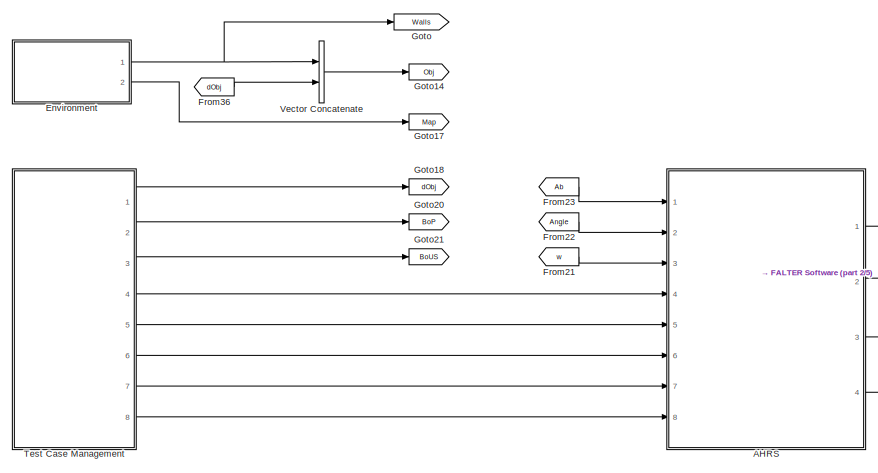
[diagram: root canvas - part 1/5, top left region]
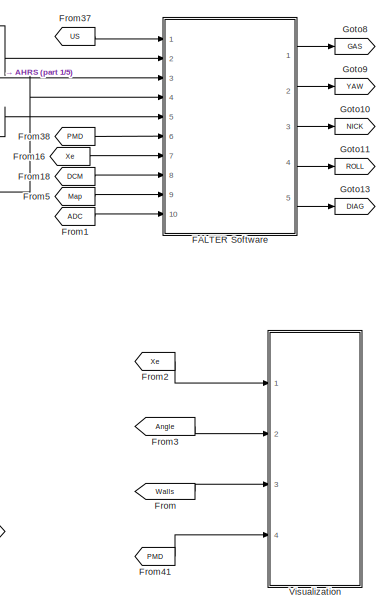
[diagram: root canvas - part 2/5, top right region]
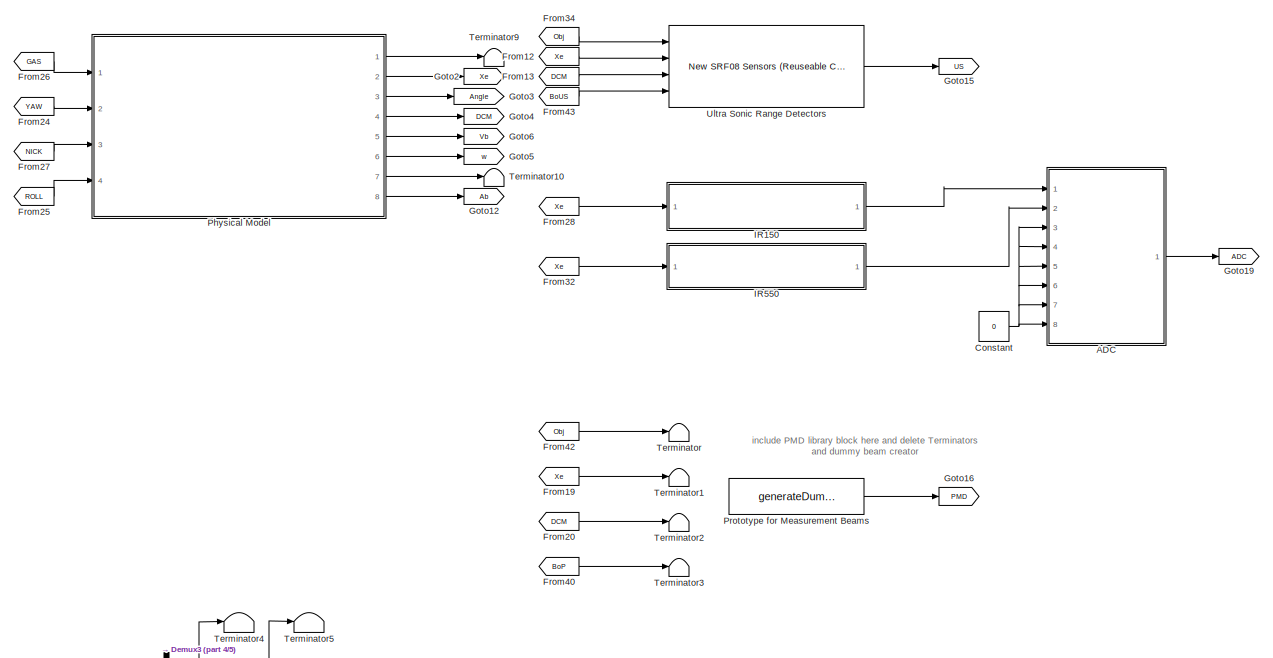
[diagram: root canvas - part 3/5, full width, middle band]
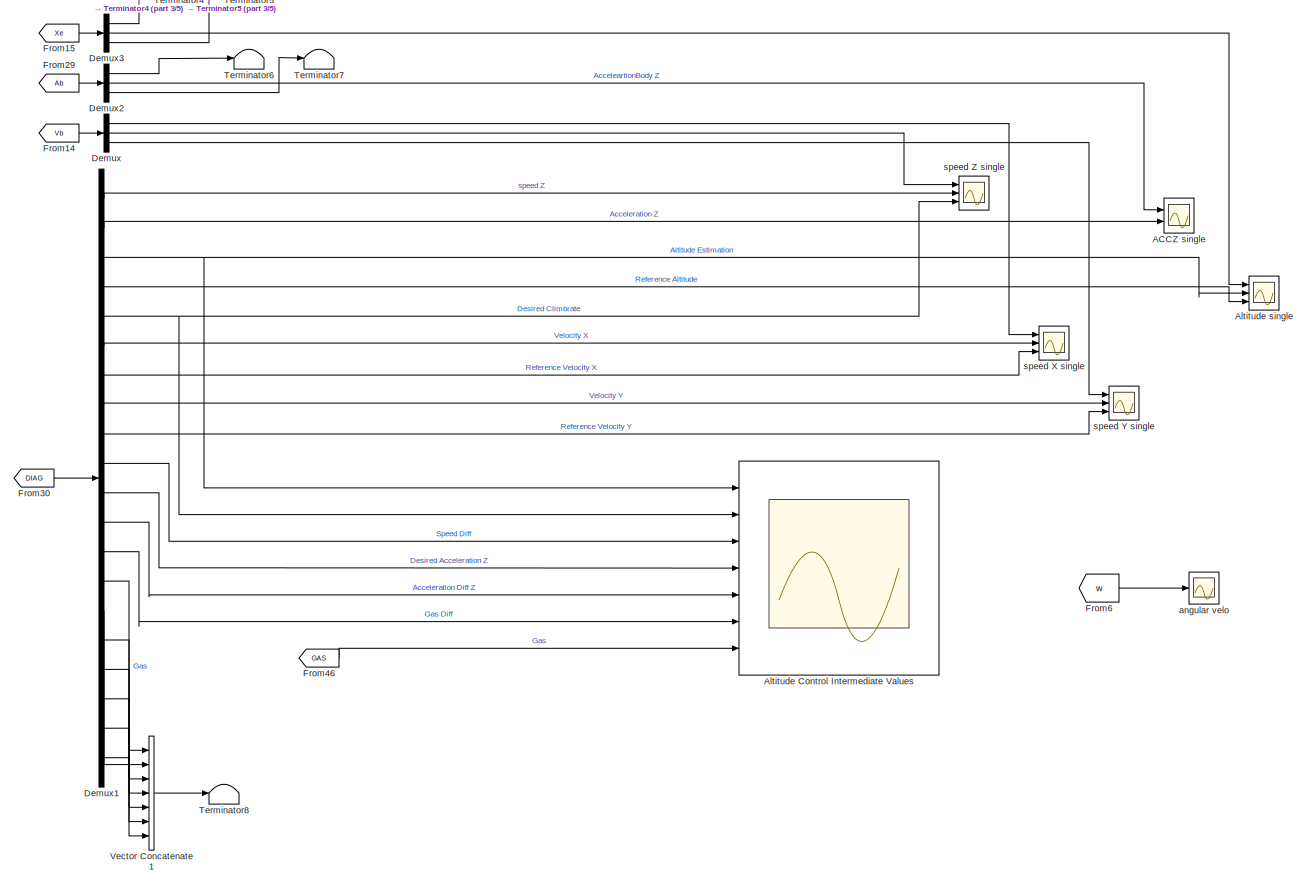
[diagram: root canvas - part 4/5, full width, bottom band]
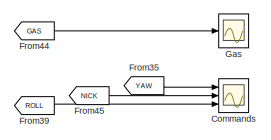
[diagram: root canvas - part 5/5, bottom right region]
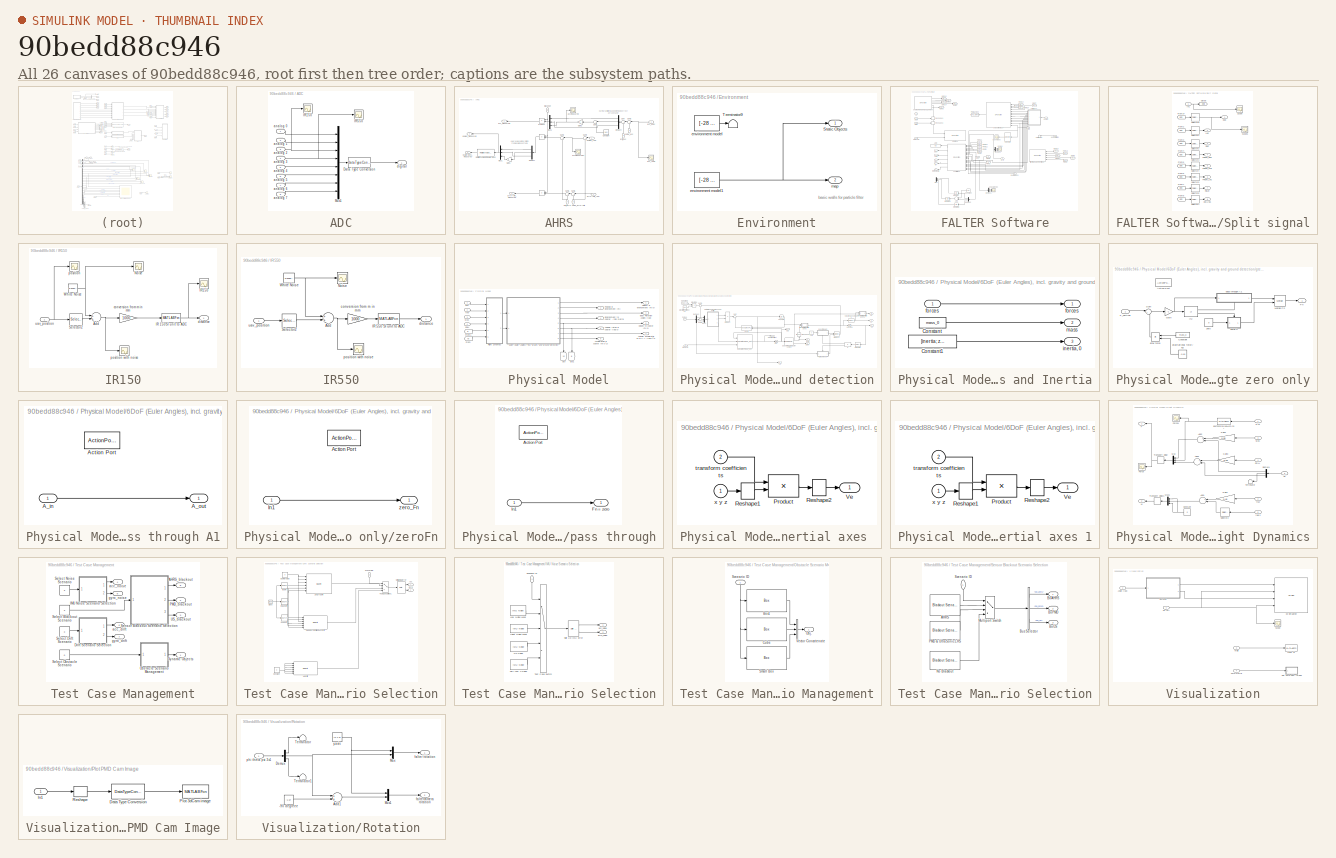
[diagram: thumbnail index - all 26 canvases of the model, root first then tree order]
MODEL slx_90bedd88c946
KIND model
BLOCK [Scope] ACCZ single
  DataFormat = StructureWithTime
  Floating = off
  NumInputPorts = 2
  Ports = [2]
  SampleInput = on
  SampleTime = 0
  SaveName = ScopeData4
  ShowLegends = on
  TimeRange = 5
  YMax = -8.7~9.7343
  YMin = -9.9~9.7331
BLOCK [SubSystem] ADC
  FunctionWithSeparateData = off
  MaskHideContents = off
  MinAlgLoopOccurrences = off
  Opaque = off
  Ports = [8, 1]
  PropExecContextOutsideSubsystem = off
  RTWSystemCode = Auto
  RequestExecContextInheritance = off
BLOCK [DataTypeConversion] ADC/Data Type Conversion
  OutDataTypeStr = uint32
  OutMax = 1023
  OutMin = 0
  RndMeth = Floor
  SaturateOnIntegerOverflow = off
BLOCK [Scope] ADC/IR150
  DataFormat = StructureWithTime
  Floating = off
  NumInputPorts = 1
  Ports = [1]
  SampleInput = on
  SampleTime = 0
  SaveName = ScopeData9
  ShowLegends = off
  TimeRange = 7.5
  YMax = 0
  YMin = -0.85
BLOCK [Scope] ADC/IR550
  DataFormat = StructureWithTime
  Floating = off
  NumInputPorts = 1
  Ports = [1]
  SampleInput = on
  SampleTime = 0
  SaveName = ScopeData6
  ShowLegends = off
  TimeRange = 7.5
  YMax = 0
  YMin = -0.85
BLOCK [Mux] ADC/Mux1
  DisplayOption = bar
  Inputs = 8
  Ports = [8, 1]
BLOCK [Inport] ADC/analog 0
  IconDisplay = Port number
BLOCK [Inport] ADC/analog 1
  IconDisplay = Port number
  Port = 2
BLOCK [Inport] ADC/analog 2
  IconDisplay = Port number
  Port = 3
BLOCK [Inport] ADC/analog 3
  IconDisplay = Port number
  Port = 4
BLOCK [Inport] ADC/analog 4
  IconDisplay = Port number
  Port = 5
BLOCK [Inport] ADC/analog 5
  IconDisplay = Port number
  Port = 6
BLOCK [Inport] ADC/analog 6
  IconDisplay = Port number
  Port = 7
BLOCK [Inport] ADC/analog 7
  IconDisplay = Port number
  Port = 8
BLOCK [Outport] ADC/digital
  IconDisplay = Port number
BLOCK [SubSystem] AHRS
  FunctionWithSeparateData = off
  MaskHideContents = off
  MinAlgLoopOccurrences = off
  Opaque = off
  Ports = [8, 4]
  PropExecContextOutsideSubsystem = off
  RTWSystemCode = Auto
  RequestExecContextInheritance = off
BLOCK [Product] AHRS/ 
  InputSameDT = off
  OutDataTypeStr = Inherit: Inherit via internal rule
  Ports = [2, 1]
  SaturateOnIntegerOverflow = off
BLOCK [Product] AHRS/   
  InputSameDT = off
  OutDataTypeStr = Inherit: Inherit via internal rule
  Ports = [2, 1]
  SaturateOnIntegerOverflow = off
BLOCK [Inport] AHRS/Blackout
  IconDisplay = Port number
  Port = 8
BLOCK [Constant] AHRS/Constant
  Value = 9.81
BLOCK [Demux] AHRS/Demux1
  DisplayOption = bar
  Outputs = 3
  Ports = [1, 3]
BLOCK [Demux] AHRS/Demux4
  DisplayOption = bar
  Outputs = 3
  Ports = [1, 3]
BLOCK [Gain] AHRS/Gain1
  Gain = -1
  OutDataTypeStr = Inherit: Inherit via internal rule
  ParamDataTypeStr = Inherit: Inherit via internal rule
  SaturateOnIntegerOverflow = off
BLOCK [Gain] AHRS/Gain2
  Gain = -1
  OutDataTypeStr = Inherit: Inherit via internal rule
  ParamDataTypeStr = Inherit: Inherit via internal rule
  SaturateOnIntegerOverflow = off
BLOCK [Mux] AHRS/Mux1
  DisplayOption = bar
  Inputs = 3
  Ports = [3, 1]
BLOCK [Mux] AHRS/Mux5
  DisplayOption = bar
  Inputs = 3
  Ports = [3, 1]
BLOCK [Product] AHRS/Product
  InputSameDT = off
  OutDataTypeStr = Inherit: Inherit via internal rule
  Ports = [2, 1]
  SaturateOnIntegerOverflow = off
BLOCK [Reference] AHRS/Rotation Angles to Quaternions  REF=aerolibtransform2/Rotation Angles to Quaternions
  AttributesFormatString = Rotation Order: %<rotationOrder>
  Ports = [1, 1]
  SourceBlock = aerolibtransform2/Rotation Angles to Quaternions
  SourceType = Ang2Quat
  rotationOrder = XYZ
BLOCK [Sum] AHRS/Sum
  IconShape = round
  InputSameDT = off
  Inputs = |++
  OutDataTypeStr = Inherit: Inherit via internal rule
  Ports = [2, 1]
  SaturateOnIntegerOverflow = off
BLOCK [Sum] AHRS/Sum1
  IconShape = round
  InputSameDT = off
  Inputs = |++
  OutDataTypeStr = Inherit: Inherit via internal rule
  Ports = [2, 1]
  SaturateOnIntegerOverflow = off
BLOCK [Sum] AHRS/Sum2
  IconShape = round
  InputSameDT = off
  Inputs = |++
  OutDataTypeStr = Inherit: Inherit via internal rule
  Ports = [2, 1]
  SaturateOnIntegerOverflow = off
BLOCK [Sum] AHRS/Sum3
  IconShape = round
  InputSameDT = off
  Inputs = |++
  OutDataTypeStr = Inherit: Inherit via internal rule
  Ports = [2, 1]
  SaturateOnIntegerOverflow = off
BLOCK [Sum] AHRS/Sum4
  IconShape = round
  InputSameDT = off
  Inputs = |++
  OutDataTypeStr = Inherit: Inherit via internal rule
  Ports = [2, 1]
  SaturateOnIntegerOverflow = off
BLOCK [Sum] AHRS/Sum5
  IconShape = round
  InputSameDT = off
  Inputs = |++
  OutDataTypeStr = Inherit: Inherit via internal rule
  Ports = [2, 1]
  SaturateOnIntegerOverflow = off
BLOCK [Sum] AHRS/Sum6
  IconShape = round
  InputSameDT = off
  Inputs = |++
  OutDataTypeStr = Inherit: Inherit via internal rule
  Ports = [2, 1]
  SaturateOnIntegerOverflow = off
BLOCK [Scope] AHRS/acc measured
  DataFormat = StructureWithTime
  Floating = off
  NumInputPorts = 1
  Ports = [1]
  SampleInput = on
  SampleTime = 0
  SaveName = ScopeData1
  ShowLegends = off
  TimeRange = 7.5
  YMax = -5
  YMin = -11
BLOCK [Scope] AHRS/acc measured1
  DataFormat = StructureWithTime
  Floating = off
  NumInputPorts = 1
  Ports = [1]
  SampleInput = on
  SampleTime = 0
  SaveName = ScopeData18
  ShowLegends = off
  TimeRange = 7.5
  YMax = -5
  YMin = -11
BLOCK [Inport] AHRS/acc_body
  IconDisplay = Port number
BLOCK [Outport] AHRS/acc_measured
  IconDisplay = Port number
BLOCK [Scope] AHRS/acc_real1
  DataFormat = StructureWithTime
  Floating = off
  NumInputPorts = 1
  Ports = [1]
  SampleInput = on
  SampleTime = 0
  ShowLegends = off
  TimeRange = 7.5
  YMax = 0
  YMin = -0.85
BLOCK [Outport] AHRS/angles_measured
  IconDisplay = Port number
  Port = 2
BLOCK [Inport] AHRS/angles_real
  IconDisplay = Port number
  Port = 2
BLOCK [Inport] AHRS/drift_acc
  IconDisplay = Port number
  Port = 6
BLOCK [Inport] AHRS/drift_gyro
  IconDisplay = Port number
  Port = 7
BLOCK [Outport] AHRS/gyro-rate_measured
  IconDisplay = Port number
  Port = 4
BLOCK [Inport] AHRS/gyro-rate_real
  IconDisplay = Port number
  Port = 3
BLOCK [Inport] AHRS/noise_acc
  IconDisplay = Port number
  Port = 4
BLOCK [Inport] AHRS/noise_gyro-rate
  IconDisplay = Port number
  Port = 5
BLOCK [Outport] AHRS/quaternions_measured
  IconDisplay = Port number
  Port = 3
BLOCK [Scope] Altitude Control Intermediate Values
  DataFormat = StructureWithTime
  Floating = off
  NumInputPorts = 7
  Ports = [7]
  SampleInput = on
  SampleTime = 0
  SaveName = ScopeData16
  ShowLegends = on
  TimeRange = 20
  YMax = 1.3~0.5~0.5~0.3~0.3~0.00015~150
  YMin = 0.1~-0.2~-0.9~-0.5~-0.4~-0.00015~0
BLOCK [Scope] Altitude single
  DataFormat = StructureWithTime
  Floating = off
  NumInputPorts = 3
  Ports = [3]
  SampleInput = on
  SampleTime = 0
  SaveName = ScopeData7
  ShowLegends = off
  TimeRange = 15
  YMax = 1.3~1.3~1
  YMin = 0.1~0.1~0
BLOCK [Scope] Commands
  DataFormat = StructureWithTime
  Floating = off
  NumInputPorts = 3
  Ports = [3]
  SampleInput = on
  SampleTime = 0
  SaveName = ScopeData32
  ShowLegends = off
  YMax = 3.25~0.8~1
  YMin = 0~0.1~0
BLOCK [Constant] Constant
  Value = 0
BLOCK [Demux] Demux
  DisplayOption = bar
  Outputs = 3
  Ports = [1, 3]
BLOCK [Demux] Demux1
  DisplayOption = bar
  Outputs = 20
  Ports = [1, 20]
BLOCK [Demux] Demux2
  DisplayOption = bar
  Outputs = 3
  Ports = [1, 3]
BLOCK [Demux] Demux3
  DisplayOption = bar
  Outputs = 3
  Ports = [1, 3]
BLOCK [SubSystem] Environment
  FunctionWithSeparateData = off
  MaskHideContents = off
  MinAlgLoopOccurrences = off
  Opaque = off
  Ports = [0, 2]
  PropExecContextOutsideSubsystem = off
  RTWSystemCode = Auto
  RequestExecContextInheritance = off
BLOCK [Outport] Environment/Static Objects
  IconDisplay = Port number
BLOCK [Terminator] Environment/Terminator9
BLOCK [Constant] Environment/environment model
  Value = [\n   -28     0   -16    10     0     0     0     0    32;\n   -18     0    -5    36     0     0     0     0    10;\n    18     0   -16    10     0     0     0     0    32;\n    15     0     1     0     2     0     3     0     0;\n     8     0     1     0     2     0     6     0     0;\n     4     0     1     0     2     0     3     0     0;\n     1     0     1     0     2     0     2     0     0;\n    -2...<+5595ch>
BLOCK [Constant] Environment/environment model1
  Value = [\n   -28     0   -16    10     0     0     0     0    32;\n   -18     0    -5    36     0     0     0     0    10;\n    18     0   -16    10     0     0     0     0    32;\n   -24     0     1     0     2     0    -4     0     0;\n   -24     0    -1     0     2     0    -4     0     0;\n   -24     0    -1     0     2     0     0     0   -15;\n   -22     0    -1     0     2     0     0     0   -15;\n   -24...<+2235ch>
BLOCK [Outport] Environment/map
  IconDisplay = Port number
  Port = 2
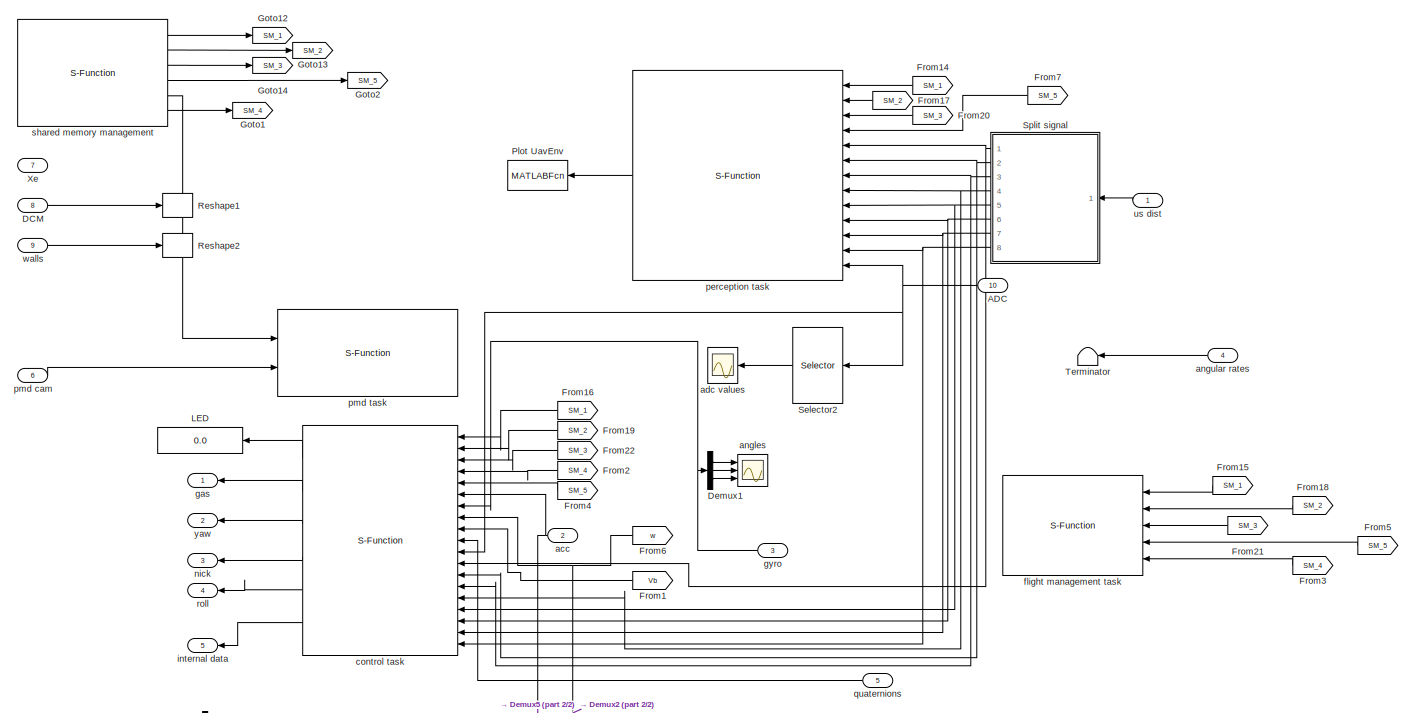
[diagram: FALTER Software - part 1/2, full width, middle band]
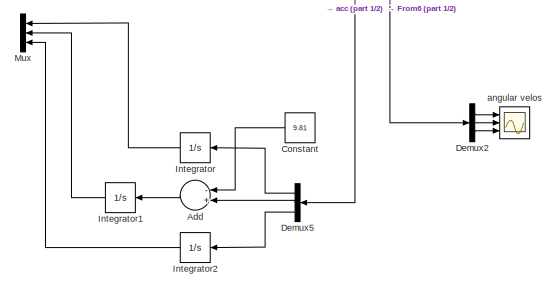
[diagram: FALTER Software - part 2/2, bottom left region]
BLOCK [SubSystem] FALTER Software
  FunctionWithSeparateData = off
  MaskHideContents = off
  MinAlgLoopOccurrences = off
  Opaque = off
  Ports = [10, 5]
  PropExecContextOutsideSubsystem = off
  RTWSystemCode = Auto
  RequestExecContextInheritance = off
BLOCK [Inport] FALTER Software/ADC
  IconDisplay = Port number
  OutDataTypeStr = uint32
  Port = 10
BLOCK [Sum] FALTER Software/Add
  InputSameDT = off
  Inputs = -+
  OutDataTypeStr = Inherit: Inherit via internal rule
  Ports = [2, 1]
  SaturateOnIntegerOverflow = off
BLOCK [Constant] FALTER Software/Constant
  Value = 9.81
BLOCK [Inport] FALTER Software/DCM
  IconDisplay = Port number
  Port = 8
BLOCK [Demux] FALTER Software/Demux1
  DisplayOption = bar
  Outputs = 3
  Ports = [1, 3]
BLOCK [Demux] FALTER Software/Demux2
  DisplayOption = bar
  Outputs = 3
  Ports = [1, 3]
BLOCK [Demux] FALTER Software/Demux5
  DisplayOption = bar
  Outputs = 3
  Ports = [1, 3]
BLOCK [From] FALTER Software/From1
  GotoTag = Vb
  TagVisibility = global
BLOCK [From] FALTER Software/From14
  GotoTag = SM_1
BLOCK [From] FALTER Software/From15
  GotoTag = SM_1
BLOCK [From] FALTER Software/From16
  GotoTag = SM_1
BLOCK [From] FALTER Software/From17
  GotoTag = SM_2
BLOCK [From] FALTER Software/From18
  GotoTag = SM_2
BLOCK [From] FALTER Software/From19
  GotoTag = SM_2
BLOCK [From] FALTER Software/From2
  GotoTag = SM_4
BLOCK [From] FALTER Software/From20
  GotoTag = SM_3
BLOCK [From] FALTER Software/From21
  GotoTag = SM_3
BLOCK [From] FALTER Software/From22
  GotoTag = SM_3
BLOCK [From] FALTER Software/From3
  GotoTag = SM_4
BLOCK [From] FALTER Software/From4
  GotoTag = SM_5
BLOCK [From] FALTER Software/From5
  GotoTag = SM_5
BLOCK [From] FALTER Software/From6
  GotoTag = w
  TagVisibility = global
BLOCK [From] FALTER Software/From7
  GotoTag = SM_5
BLOCK [Goto] FALTER Software/Goto1
  GotoTag = SM_4
BLOCK [Goto] FALTER Software/Goto12
  GotoTag = SM_1
BLOCK [Goto] FALTER Software/Goto13
  GotoTag = SM_2
BLOCK [Goto] FALTER Software/Goto14
  GotoTag = SM_3
BLOCK [Goto] FALTER Software/Goto2
  GotoTag = SM_5
BLOCK [Integrator] FALTER Software/Integrator
  Ports = [1, 1]
BLOCK [Integrator] FALTER Software/Integrator1
  Ports = [1, 1]
BLOCK [Integrator] FALTER Software/Integrator2
  Ports = [1, 1]
BLOCK [Display] FALTER Software/LED
  Decimation = 1
  Lockdown = off
  Ports = [1]
BLOCK [Mux] FALTER Software/Mux
  DisplayOption = bar
  Inputs = 3
  Ports = [3, 1]
BLOCK [MATLABFcn] FALTER Software/Plot UavEnv
  MATLABFcn = plotUavEnv
  OutputDimensions = 0
  Ports = [1]
  SampleTime = 0.05
BLOCK [Reshape] FALTER Software/Reshape1
  OutputDimensionality = Row vector (2-D)
  Ports = [1, 1]
BLOCK [Reshape] FALTER Software/Reshape2
  OutputDimensionality = Row vector (2-D)
  Ports = [1, 1]
BLOCK [Selector] FALTER Software/Selector2
  IndexMode = Zero-based
  IndexOptions = Index vector (dialog)
  Indices = [2 3 4]
  InputPortWidth = 8
  OutputSizes = 1
  Ports = [1, 1]
BLOCK [SubSystem] FALTER Software/Split signal
  FunctionWithSeparateData = off
  MaskHideContents = off
  MinAlgLoopOccurrences = off
  Opaque = off
  Ports = [1, 8]
  PropExecContextOutsideSubsystem = off
  RTWSystemCode = Auto
  RequestExecContextInheritance = off
BLOCK [Outport] FALTER Software/Split signal/CEILING
  IconDisplay = Port number
  Port = 8
BLOCK [Outport] FALTER Software/Split signal/FRONT_CTR
  IconDisplay = Port number
  Port = 5
BLOCK [Outport] FALTER Software/Split signal/FRONT_LHS
  IconDisplay = Port number
  Port = 6
BLOCK [Outport] FALTER Software/Split signal/FRONT_RHS
  IconDisplay = Port number
  Port = 4
BLOCK [From] FALTER Software/Split signal/From2
  GotoTag = dists
BLOCK [From] FALTER Software/Split signal/From3
  GotoTag = dists
BLOCK [From] FALTER Software/Split signal/From37
  GotoTag = dists
BLOCK [From] FALTER Software/Split signal/From4
  GotoTag = dists
BLOCK [From] FALTER Software/Split signal/From5
  GotoTag = dists
BLOCK [From] FALTER Software/Split signal/From6
  GotoTag = dists
BLOCK [From] FALTER Software/Split signal/From7
  GotoTag = dists
BLOCK [From] FALTER Software/Split signal/From8
  GotoTag = dists
BLOCK [Outport] FALTER Software/Split signal/GND
  IconDisplay = Port number
BLOCK [Goto] FALTER Software/Split signal/Goto8
  GotoTag = dists
BLOCK [Inport] FALTER Software/Split signal/In1
  IconDisplay = Port number
  VarSizeSig = No
BLOCK [Outport] FALTER Software/Split signal/LHS
  IconDisplay = Port number
  Port = 2
BLOCK [Outport] FALTER Software/Split signal/REAR
  IconDisplay = Port number
  Port = 7
BLOCK [Outport] FALTER Software/Split signal/RHS
  IconDisplay = Port number
  Port = 3
BLOCK [Scope] FALTER Software/Split signal/Scope
  DataFormat = StructureWithTime
  Floating = off
  NumInputPorts = 1
  Ports = [1]
  SampleTime = 0
  SaveName = ScopeData13
  ShowLegends = off
  YMax = 5e+274
  YMin = -5e+275
BLOCK [Scope] FALTER Software/Split signal/Scope1
  DataFormat = StructureWithTime
  Floating = off
  NumInputPorts = 1
  Ports = [1]
  SampleTime = 0
  SaveName = ScopeData2
  ShowLegends = off
  YMax = 5e+274
  YMin = -5e+275
BLOCK [Selector] FALTER Software/Split signal/Selector1
  IndexOptions = Index vector (dialog),Select all
  Indices = 2,1
  InputPortWidth = 3
  NumberOfDimensions = 2
  OutputSizes = 1,1
  Ports = [1, 1]
BLOCK [Selector] FALTER Software/Split signal/Selector2
  IndexOptions = Index vector (dialog),Select all
  Indices = 3,1
  InputPortWidth = 3
  NumberOfDimensions = 2
  OutputSizes = 1,1
  Ports = [1, 1]
BLOCK [Selector] FALTER Software/Split signal/Selector3
  IndexOptions = Index vector (dialog),Select all
  Indices = 4,1
  InputPortWidth = 3
  NumberOfDimensions = 2
  OutputSizes = 1,1
  Ports = [1, 1]
BLOCK [Selector] FALTER Software/Split signal/Selector4
  IndexOptions = Index vector (dialog),Select all
  Indices = 5,1
  InputPortWidth = 3
  NumberOfDimensions = 2
  OutputSizes = 1,1
  Ports = [1, 1]
BLOCK [Selector] FALTER Software/Split signal/Selector5
  IndexOptions = Index vector (dialog),Select all
  Indices = 6,1
  InputPortWidth = 3
  NumberOfDimensions = 2
  OutputSizes = 1,1
  Ports = [1, 1]
BLOCK [Selector] FALTER Software/Split signal/Selector6
  IndexOptions = Index vector (dialog),Select all
  Indices = 7,1
  InputPortWidth = 3
  NumberOfDimensions = 2
  OutputSizes = 1,1
  Ports = [1, 1]
BLOCK [Selector] FALTER Software/Split signal/Selector7
  IndexOptions = Index vector (dialog),Select all
  Indices = 8,1
  InputPortWidth = 3
  NumberOfDimensions = 2
  OutputSizes = 1,1
  Ports = [1, 1]
BLOCK [Selector] FALTER Software/Split signal/Selector8
  IndexOptions = Index vector (dialog),Select all
  Indices = 1,1
  InputPortWidth = 3
  NumberOfDimensions = 2
  OutputSizes = 1,1
  Ports = [1, 1]
BLOCK [Terminator] FALTER Software/Terminator
BLOCK [Inport] FALTER Software/Xe
  IconDisplay = Port number
  Port = 7
BLOCK [Inport] FALTER Software/acc
  IconDisplay = Port number
  Port = 2
BLOCK [Scope] FALTER Software/adc values
  DataFormat = StructureWithTime
  Floating = off
  NumInputPorts = 1
  Ports = [1]
  SampleInput = on
  SampleTime = 0
  SaveName = ScopeData28
  ShowLegends = off
  TimeRange = 7.5
  YMax = 0
  YMin = -0.85
BLOCK [Scope] FALTER Software/angles
  DataFormat = StructureWithTime
  Floating = off
  NumInputPorts = 3
  Ports = [3]
  SampleInput = on
  SampleTime = 0
  SaveName = ScopeData17
  ShowLegends = off
  TimeRange = 7.5
  YMax = 0~5~5
  YMin = -0.85~-5~-5
BLOCK [Inport] FALTER Software/angular rates
  IconDisplay = Port number
  Port = 4
BLOCK [Scope] FALTER Software/angular velos
  DataFormat = StructureWithTime
  Floating = off
  NumInputPorts = 3
  Ports = [3]
  SampleInput = on
  SampleTime = 0
  SaveName = ScopeData26
  ShowLegends = off
  TimeRange = 7.5
  YMax = 0~5~5
  YMin = -0.85~-5~-5
BLOCK [S-Function] FALTER Software/control task
  EnableBusSupport = off
  FunctionName = control
  Ports = [19, 6]
BLOCK [S-Function] FALTER Software/flight management task
  Commented = on
  EnableBusSupport = off
  FunctionName = falter_flightmanagement_sfunction
  Ports = [5]
BLOCK [Outport] FALTER Software/gas
  IconDisplay = Port number
BLOCK [Inport] FALTER Software/gyro
  IconDisplay = Port number
  Port = 3
BLOCK [Outport] FALTER Software/internal data
  IconDisplay = Port number
  Port = 5
BLOCK [Outport] FALTER Software/nick
  IconDisplay = Port number
  Port = 3
BLOCK [S-Function] FALTER Software/perception task
  Commented = on
  EnableBusSupport = off
  FunctionName = falter_perception_sfunction
  Ports = [13, 1]
BLOCK [Inport] FALTER Software/pmd cam
  IconDisplay = Port number
  Port = 6
BLOCK [S-Function] FALTER Software/pmd task
  Commented = on
  EnableBusSupport = off
  FunctionName = falter_pmd_sfunction
  Ports = [2]
BLOCK [Inport] FALTER Software/quaternions
  IconDisplay = Port number
  Port = 5
BLOCK [Outport] FALTER Software/roll
  IconDisplay = Port number
  Port = 4
BLOCK [S-Function] FALTER Software/shared memory management
  Commented = on
  EnableBusSupport = off
  FunctionName = falter_sharedMemory_sfunction
  Ports = [0, 6]
BLOCK [Inport] FALTER Software/us dist
  IconDisplay = Port number
BLOCK [Inport] FALTER Software/walls
  IconDisplay = Port number
  Port = 9
BLOCK [Outport] FALTER Software/yaw 
  IconDisplay = Port number
  Port = 2
BLOCK [From] From
  GotoTag = Walls
BLOCK [From] From1
  GotoTag = ADC
BLOCK [From] From12
  GotoTag = Xe
BLOCK [From] From13
  GotoTag = DCM
BLOCK [From] From14
  GotoTag = Vb
  TagVisibility = global
BLOCK [From] From15
  GotoTag = Xe
BLOCK [From] From16
  GotoTag = Xe
BLOCK [From] From18
  GotoTag = DCM
BLOCK [From] From19
  GotoTag = Xe
BLOCK [From] From2
  GotoTag = Xe
BLOCK [From] From20
  GotoTag = DCM
BLOCK [From] From21
  GotoTag = w
  TagVisibility = global
BLOCK [From] From22
  GotoTag = Angle
BLOCK [From] From23
  GotoTag = Ab
BLOCK [From] From24
  GotoTag = YAW
BLOCK [From] From25
  GotoTag = ROLL
BLOCK [From] From26
  GotoTag = GAS
BLOCK [From] From27
  GotoTag = NICK
BLOCK [From] From28
  GotoTag = Xe
BLOCK [From] From29
  GotoTag = Ab
BLOCK [From] From3
  GotoTag = Angle
BLOCK [From] From30
  GotoTag = DIAG
BLOCK [From] From32
  GotoTag = Xe
BLOCK [From] From34
  GotoTag = Obj
BLOCK [From] From35
  GotoTag = YAW
BLOCK [From] From36
  GotoTag = dObj
BLOCK [From] From37
  GotoTag = US
BLOCK [From] From38
  GotoTag = PMD
BLOCK [From] From39
  GotoTag = ROLL
BLOCK [From] From40
  GotoTag = BoP
BLOCK [From] From41
  GotoTag = PMD
BLOCK [From] From42
  GotoTag = Obj
BLOCK [From] From43
  GotoTag = BoUS
BLOCK [From] From44
  GotoTag = GAS
BLOCK [From] From45
  GotoTag = NICK
BLOCK [From] From46
  GotoTag = GAS
BLOCK [From] From5
  GotoTag = Map
BLOCK [From] From6
  GotoTag = w
  TagVisibility = global
BLOCK [Scope] Gas
  DataFormat = StructureWithTime
  Floating = off
  NumInputPorts = 1
  Ports = [1]
  SampleInput = on
  SampleTime = 0
  SaveName = ScopeData31
  ShowLegends = off
  TimeRange = 18
  YMax = 300
  YMin = 0
BLOCK [Goto] Goto
  GotoTag = Walls
BLOCK [Goto] Goto10
  GotoTag = NICK
BLOCK [Goto] Goto11
  GotoTag = ROLL
BLOCK [Goto] Goto12
  GotoTag = Ab
BLOCK [Goto] Goto13
  GotoTag = DIAG
BLOCK [Goto] Goto14
  GotoTag = Obj
BLOCK [Goto] Goto15
  GotoTag = US
BLOCK [Goto] Goto16
  GotoTag = PMD
BLOCK [Goto] Goto17
  GotoTag = Map
BLOCK [Goto] Goto18
  GotoTag = dObj
BLOCK [Goto] Goto19
  GotoTag = ADC
BLOCK [Goto] Goto2
  GotoTag = Xe
BLOCK [Goto] Goto20
  GotoTag = BoP
BLOCK [Goto] Goto21
  GotoTag = BoUS
BLOCK [Goto] Goto3
  GotoTag = Angle
BLOCK [Goto] Goto4
  GotoTag = DCM
BLOCK [Goto] Goto5
  GotoTag = w
  TagVisibility = global
BLOCK [Goto] Goto6
  GotoTag = Vb
  TagVisibility = global
BLOCK [Goto] Goto8
  GotoTag = GAS
BLOCK [Goto] Goto9
  GotoTag = YAW
BLOCK [SubSystem] IR150
  FunctionWithSeparateData = off
  MaskHideContents = off
  MinAlgLoopOccurrences = off
  Opaque = off
  Ports = [1, 1]
  PropExecContextOutsideSubsystem = off
  RTWSystemCode = Auto
  RequestExecContextInheritance = off
BLOCK [Sum] IR150/Add
  InputSameDT = off
  OutDataTypeStr = Inherit: Inherit via internal rule
  Ports = [2, 1]
  SaturateOnIntegerOverflow = off
BLOCK [MATLABFcn] IR150/IR 150SI unit to ADC
  MATLABFcn = ir150_inverse
  Ports = [1, 1]
BLOCK [Scope] IR150/IR150
  DataFormat = StructureWithTime
  Floating = off
  NumInputPorts = 1
  Ports = [1]
  SampleInput = on
  SampleTime = 0
  SaveName = ScopeData15
  ShowLegends = off
  TimeRange = 7.5
  YMax = 0
  YMin = -0.85
BLOCK [Scope] IR150/Noise
  DataFormat = StructureWithTime
  Floating = off
  NumInputPorts = 1
  Ports = [1]
  SampleInput = on
  SampleTime = 0
  SaveName = ScopeData10
  ShowLegends = off
  TimeRange = 7.5
  YMax = 0
  YMin = -0.85
  ZoomMode = xonly
BLOCK [Selector] IR150/Selector2
  IndexMode = Zero-based
  IndexOptions = Index vector (dialog)
  Indices = [1]
  InputPortWidth = 3
  OutputSizes = 1
  Ports = [1, 1]
BLOCK [RandomNumber] IR150/White Noise
  DisableCoverage = on
  SampleTime = 0
  Seed = 234987234
  Variance = 0.0001
BLOCK [Gain] IR150/conversion from m in mm
  Gain = 1000
  OutDataTypeStr = Inherit: Inherit via internal rule
  ParamDataTypeStr = Inherit: Inherit via internal rule
  SaturateOnIntegerOverflow = off
BLOCK [Outport] IR150/distance
  IconDisplay = Port number
BLOCK [Scope] IR150/position
  DataFormat = StructureWithTime
  Floating = off
  NumInputPorts = 1
  Ports = [1]
  SampleInput = on
  SampleTime = 0
  SaveName = ScopeData11
  ShowLegends = off
  TimeRange = 7.5
  YMax = 0
  YMin = -0.85
BLOCK [Scope] IR150/position with noise
  DataFormat = StructureWithTime
  Floating = off
  NumInputPorts = 1
  Ports = [1]
  SampleInput = on
  SampleTime = 0
  SaveName = ScopeData12
  ShowLegends = off
  TimeRange = 7.5
  YMax = 0
  YMin = -0.85
BLOCK [Inport] IR150/uav_position
  IconDisplay = Port number
BLOCK [SubSystem] IR550
  FunctionWithSeparateData = off
  MaskHideContents = off
  MinAlgLoopOccurrences = off
  Opaque = off
  Ports = [1, 1]
  PropExecContextOutsideSubsystem = off
  RTWSystemCode = Auto
  RequestExecContextInheritance = off
BLOCK [Sum] IR550/Add
  InputSameDT = off
  OutDataTypeStr = Inherit: Inherit via internal rule
  Ports = [2, 1]
  SaturateOnIntegerOverflow = off
BLOCK [MATLABFcn] IR550/IR 550 SI unit to ADC
  MATLABFcn = ir550_inverse
  Ports = [1, 1]
BLOCK [Scope] IR550/Noise
  DataFormat = StructureWithTime
  Floating = off
  NumInputPorts = 1
  Ports = [1]
  SampleInput = on
  SampleTime = 0
  SaveName = ScopeData29
  ShowLegends = off
  TimeRange = 7.5
  YMax = 0
  YMin = -0.85
BLOCK [Selector] IR550/Selector2
  IndexMode = Zero-based
  IndexOptions = Index vector (dialog)
  Indices = [1]
  InputPortWidth = 3
  OutputSizes = 1
  Ports = [1, 1]
BLOCK [RandomNumber] IR550/White Noise
  DisableCoverage = on
  SampleTime = 0
  Seed = 234987234
  Variance = 0.0001
BLOCK [Gain] IR550/conversion from m in mm
  Gain = 1000
  OutDataTypeStr = Inherit: Inherit via internal rule
  ParamDataTypeStr = Inherit: Inherit via internal rule
  SaturateOnIntegerOverflow = off
BLOCK [Outport] IR550/distance
  IconDisplay = Port number
BLOCK [Scope] IR550/position with noise
  DataFormat = StructureWithTime
  Floating = off
  NumInputPorts = 1
  Ports = [1]
  SampleInput = on
  SampleTime = 0
  SaveName = ScopeData30
  ShowLegends = off
  TimeRange = 7.5
  YMax = 0
  YMin = -0.85
BLOCK [Inport] IR550/uav_position
  IconDisplay = Port number
BLOCK [SubSystem] Physical Model
  FunctionWithSeparateData = off
  MaskHideContents = off
  MinAlgLoopOccurrences = off
  Opaque = off
  Ports = [4, 8]
  PropExecContextOutsideSubsystem = off
  RTWSystemCode = Auto
  RequestExecContextInheritance = off
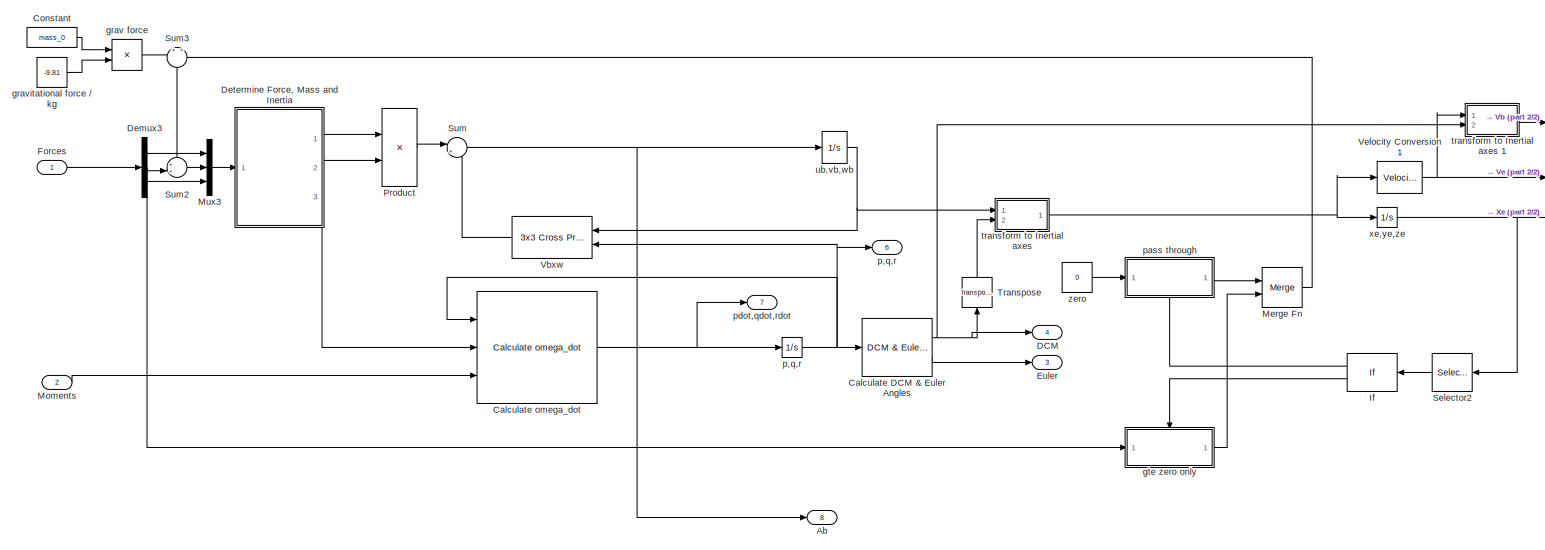
[diagram: Physical Model/6DoF (Euler Angles), incl. gravity and ground detection - part 1/2, most of the canvas]
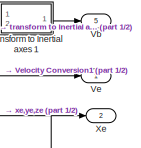
[diagram: Physical Model/6DoF (Euler Angles), incl. gravity and ground detection - part 2/2, middle right region]
BLOCK [SubSystem] Physical Model/6DoF (Euler Angles), incl. gravity and ground detection
  FunctionWithSeparateData = off
  MaskHideContents = off
  MinAlgLoopOccurrences = off
  Opaque = off
  Ports = [2, 8]
  PropExecContextOutsideSubsystem = off
  RTWSystemCode = Auto
  RequestExecContextInheritance = off
BLOCK [Outport] Physical Model/6DoF (Euler Angles), incl. gravity and ground detection/Ab
  IconDisplay = Port number
  Port = 8
BLOCK [Reference] Physical Model/6DoF (Euler Angles), incl. gravity and ground detection/Calculate DCM & Euler Angles  REF=aerolib6dofsys/DCM & Euler Angles (Euler)
  FunctionWithSeparateData = off
  GeneratePreprocessorConditionals = off
  Ports = [1, 2]
  ShowPortLabels = FromPortIcon
  SourceBlock = aerolib6dofsys/DCM & Euler Angles (Euler)
  SourceType = DCM & Euler Angles (Euler)
  SystemSampleTime = -1
BLOCK [Reference] Physical Model/6DoF (Euler Angles), incl. gravity and ground detection/Calculate omega_dot  REF=aerolib6dofsys/Calculate omega_dot
  Ports = [3, 1]
  SourceBlock = aerolib6dofsys/Calculate omega_dot
  SourceType = SubSystem
BLOCK [Constant] Physical Model/6DoF (Euler Angles), incl. gravity and ground detection/Constant
  OutDataTypeStr = Inherit: Inherit via back propagation
  Value = mass_0
BLOCK [Outport] Physical Model/6DoF (Euler Angles), incl. gravity and ground detection/DCM
  IconDisplay = Port number
  Port = 4
BLOCK [Demux] Physical Model/6DoF (Euler Angles), incl. gravity and ground detection/Demux3
  DisplayOption = bar
  Outputs = 3
  Ports = [1, 3]
BLOCK [SubSystem] Physical Model/6DoF (Euler Angles), incl. gravity and ground detection/Determine Force, Mass and Inertia
  FunctionWithSeparateData = off
  MaskHideContents = off
  MinAlgLoopOccurrences = off
  Opaque = off
  Ports = [1, 3]
  PropExecContextOutsideSubsystem = off
  RTWSystemCode = Auto
  RequestExecContextInheritance = off
  TreatAsAtomicUnit = on
BLOCK [Constant] Physical Model/6DoF (Euler Angles), incl. gravity and ground detection/Determine Force, Mass and Inertia/Constant
  OutDataTypeStr = Inherit: Inherit via back propagation
  Value = mass_0
BLOCK [Constant] Physical Model/6DoF (Euler Angles), incl. gravity and ground detection/Determine Force, Mass and Inertia/Constant1
  OutDataTypeStr = Inherit: Inherit via back propagation
  Value = [inertia; zeros(3,3)]
BLOCK [Inport] Physical Model/6DoF (Euler Angles), incl. gravity and ground detection/Determine Force, Mass and Inertia/forces
  IconDisplay = Port number
BLOCK [Outport] Physical Model/6DoF (Euler Angles), incl. gravity and ground detection/Determine Force, Mass and Inertia/forces 
  IconDisplay = Port number
BLOCK [Outport] Physical Model/6DoF (Euler Angles), incl. gravity and ground detection/Determine Force, Mass and Inertia/inertia, 0
  IconDisplay = Port number
  Port = 3
BLOCK [Outport] Physical Model/6DoF (Euler Angles), incl. gravity and ground detection/Determine Force, Mass and Inertia/mass
  IconDisplay = Port number
  Port = 2
BLOCK [Outport] Physical Model/6DoF (Euler Angles), incl. gravity and ground detection/Euler
  IconDisplay = Port number
  Port = 3
BLOCK [Inport] Physical Model/6DoF (Euler Angles), incl. gravity and ground detection/Forces
  IconDisplay = Port number
BLOCK [If] Physical Model/6DoF (Euler Angles), incl. gravity and ground detection/If
  IfExpression = u1 > 0.12
  Ports = [1, 2]
BLOCK [Merge] Physical Model/6DoF (Euler Angles), incl. gravity and ground detection/Merge Fn
  Ports = [2, 1]
BLOCK [Inport] Physical Model/6DoF (Euler Angles), incl. gravity and ground detection/Moments
  IconDisplay = Port number
  Port = 2
BLOCK [Mux] Physical Model/6DoF (Euler Angles), incl. gravity and ground detection/Mux3
  DisplayOption = bar
  Inputs = 3
  Ports = [3, 1]
BLOCK [Product] Physical Model/6DoF (Euler Angles), incl. gravity and ground detection/Product
  InputSameDT = off
  Inputs = */
  Ports = [2, 1]
  RndMeth = Floor
BLOCK [Selector] Physical Model/6DoF (Euler Angles), incl. gravity and ground detection/Selector2
  IndexMode = Zero-based
  IndexOptions = Index vector (dialog)
  Indices = [1]
  InputPortWidth = 3
  OutputSizes = 1
  Ports = [1, 1]
BLOCK [Sum] Physical Model/6DoF (Euler Angles), incl. gravity and ground detection/Sum
  IconShape = round
  InputSameDT = off
  Inputs = |++
  OutDataTypeStr = Inherit: Inherit via internal rule
  Ports = [2, 1]
BLOCK [Sum] Physical Model/6DoF (Euler Angles), incl. gravity and ground detection/Sum2
  IconShape = round
  InputSameDT = off
  Inputs = ++|
  OutDataTypeStr = Inherit: Inherit via internal rule
  Ports = [2, 1]
  SaturateOnIntegerOverflow = off
BLOCK [Sum] Physical Model/6DoF (Euler Angles), incl. gravity and ground detection/Sum3
  IconShape = round
  InputSameDT = off
  Inputs = +|+
  OutDataTypeStr = Inherit: Inherit via internal rule
  Ports = [2, 1]
  SaturateOnIntegerOverflow = off
BLOCK [Math] Physical Model/6DoF (Euler Angles), incl. gravity and ground detection/Transpose
  Operator = transpose
  Ports = [1, 1]
BLOCK [Outport] Physical Model/6DoF (Euler Angles), incl. gravity and ground detection/Vb
  IconDisplay = Port number
  Port = 5
BLOCK [Reference] Physical Model/6DoF (Euler Angles), incl. gravity and ground detection/Vbxw  REF=aerolibutil/3x3 Cross Product
  Ports = [2, 1]
  SourceBlock = aerolibutil/3x3 Cross Product
  SourceType = CrossProduct
BLOCK [Outport] Physical Model/6DoF (Euler Angles), incl. gravity and ground detection/Ve
  IconDisplay = Port number
BLOCK [Reference] Physical Model/6DoF (Euler Angles), incl. gravity and ground detection/Velocity Conversion1  REF=aerolibconvert2/Velocity Conversion
  IU = m/s
  OU = m/s
  Ports = [1, 1]
  SourceBlock = aerolibconvert2/Velocity Conversion
  SourceType = Velocity Conversion
BLOCK [Outport] Physical Model/6DoF (Euler Angles), incl. gravity and ground detection/Xe
  IconDisplay = Port number
  Port = 2
BLOCK [Product] Physical Model/6DoF (Euler Angles), incl. gravity and ground detection/grav force
  InputSameDT = off
  OutDataTypeStr = Inherit: Inherit via internal rule
  Ports = [2, 1]
  SaturateOnIntegerOverflow = off
BLOCK [Constant] Physical Model/6DoF (Euler Angles), incl. gravity and ground detection/gravitational force // kg
  Value = -9.81
BLOCK [SubSystem] Physical Model/6DoF (Euler Angles), incl. gravity and ground detection/gte zero only
  FunctionWithSeparateData = off
  MaskHideContents = off
  MinAlgLoopOccurrences = off
  Opaque = off
  Ports = [1, 1, 0, 0, 0, 0, 0, 1]
  PropExecContextOutsideSubsystem = off
  RTWSystemCode = Auto
  RequestExecContextInheritance = off
  TreatAsAtomicUnit = on
BLOCK [ActionPort] Physical Model/6DoF (Euler Angles), incl. gravity and ground detection/gte zero only/Action Port
  ActionType = else
BLOCK [Constant] Physical Model/6DoF (Euler Angles), incl. gravity and ground detection/gte zero only/Constant
  OutDataTypeStr = Inherit: Inherit via back propagation
  Value = mass_0
BLOCK [Inport] Physical Model/6DoF (Euler Angles), incl. gravity and ground detection/gte zero only/F_vertical
  IconDisplay = Port number
BLOCK [Outport] Physical Model/6DoF (Euler Angles), incl. gravity and ground detection/gte zero only/Fn
  IconDisplay = Port number
BLOCK [Gain] Physical Model/6DoF (Euler Angles), incl. gravity and ground detection/gte zero only/Gain
  Gain = -1
  OutDataTypeStr = Inherit: Inherit via internal rule
  ParamDataTypeStr = Inherit: Inherit via internal rule
  SaturateOnIntegerOverflow = off
BLOCK [If] Physical Model/6DoF (Euler Angles), incl. gravity and ground detection/gte zero only/If2
  Ports = [1, 2]
BLOCK [Merge] Physical Model/6DoF (Euler Angles), incl. gravity and ground detection/gte zero only/Merge Fn
  Ports = [2, 1]
BLOCK [Sum] Physical Model/6DoF (Euler Angles), incl. gravity and ground detection/gte zero only/Sum
  IconShape = round
  InputSameDT = off
  Inputs = |++
  OutDataTypeStr = Inherit: Inherit via internal rule
  Ports = [2, 1]
  SaturateOnIntegerOverflow = off
BLOCK [Product] Physical Model/6DoF (Euler Angles), incl. gravity and ground detection/gte zero only/grav force
  InputSameDT = off
  OutDataTypeStr = Inherit: Inherit via internal rule
  Ports = [2, 1]
  SaturateOnIntegerOverflow = off
BLOCK [Constant] Physical Model/6DoF (Euler Angles), incl. gravity and ground detection/gte zero only/gravitational force // kg
  Value = -9.81
BLOCK [SubSystem] Physical Model/6DoF (Euler Angles), incl. gravity and ground detection/gte zero only/pass through A1
  FunctionWithSeparateData = off
  MaskHideContents = off
  MinAlgLoopOccurrences = off
  Opaque = off
  Ports = [1, 1, 0, 0, 0, 0, 0, 1]
  PropExecContextOutsideSubsystem = off
  RTWSystemCode = Auto
  RequestExecContextInheritance = off
  TreatAsAtomicUnit = on
BLOCK [Inport] Physical Model/6DoF (Euler Angles), incl. gravity and ground detection/gte zero only/pass through A1/A_in
  IconDisplay = Port number
BLOCK [Outport] Physical Model/6DoF (Euler Angles), incl. gravity and ground detection/gte zero only/pass through A1/A_out
  IconDisplay = Port number
BLOCK [ActionPort] Physical Model/6DoF (Euler Angles), incl. gravity and ground detection/gte zero only/pass through A1/Action Port
  ActionType = then
BLOCK [Constant] Physical Model/6DoF (Euler Angles), incl. gravity and ground detection/gte zero only/zero
  Value = 0
BLOCK [SubSystem] Physical Model/6DoF (Euler Angles), incl. gravity and ground detection/gte zero only/zeroFn
  FunctionWithSeparateData = off
  MaskHideContents = off
  MinAlgLoopOccurrences = off
  Opaque = off
  Ports = [1, 1, 0, 0, 0, 0, 0, 1]
  PropExecContextOutsideSubsystem = off
  RTWSystemCode = Auto
  RequestExecContextInheritance = off
  TreatAsAtomicUnit = on
BLOCK [ActionPort] Physical Model/6DoF (Euler Angles), incl. gravity and ground detection/gte zero only/zeroFn/Action Port
  ActionType = else
BLOCK [Inport] Physical Model/6DoF (Euler Angles), incl. gravity and ground detection/gte zero only/zeroFn/In1
  IconDisplay = Port number
BLOCK [Outport] Physical Model/6DoF (Euler Angles), incl. gravity and ground detection/gte zero only/zeroFn/zero_Fn
  IconDisplay = Port number
BLOCK [Outport] Physical Model/6DoF (Euler Angles), incl. gravity and ground detection/p,q,r
  IconDisplay = Port number
  Port = 6
BLOCK [Integrator] Physical Model/6DoF (Euler Angles), incl. gravity and ground detection/p,q,r 
  InitialCondition = pm_0
  Ports = [1, 1]
BLOCK [SubSystem] Physical Model/6DoF (Euler Angles), incl. gravity and ground detection/pass through
  FunctionWithSeparateData = off
  MaskHideContents = off
  MinAlgLoopOccurrences = off
  Opaque = off
  Ports = [1, 1, 0, 0, 0, 0, 0, 1]
  PropExecContextOutsideSubsystem = off
  RTWSystemCode = Auto
  RequestExecContextInheritance = off
  TreatAsAtomicUnit = on
BLOCK [ActionPort] Physical Model/6DoF (Euler Angles), incl. gravity and ground detection/pass through/Action Port
  ActionType = then
BLOCK [Outport] Physical Model/6DoF (Euler Angles), incl. gravity and ground detection/pass through/Fn = zero
  IconDisplay = Port number
BLOCK [Inport] Physical Model/6DoF (Euler Angles), incl. gravity and ground detection/pass through/In1
  IconDisplay = Port number
BLOCK [Outport] Physical Model/6DoF (Euler Angles), incl. gravity and ground detection/pdot,qdot,rdot
  IconDisplay = Port number
  Port = 7
BLOCK [SubSystem] Physical Model/6DoF (Euler Angles), incl. gravity and ground detection/transform to Inertial axes 
  FunctionWithSeparateData = off
  MaskHideContents = off
  MinAlgLoopOccurrences = off
  Opaque = off
  Ports = [2, 1]
  PropExecContextOutsideSubsystem = off
  RTWSystemCode = Auto
  RequestExecContextInheritance = off
  ShowPortLabels = none
BLOCK [Product] Physical Model/6DoF (Euler Angles), incl. gravity and ground detection/transform to Inertial axes /Product
  Multiplication = Matrix(*)
  Ports = [2, 1]
  RndMeth = Floor
BLOCK [Reshape] Physical Model/6DoF (Euler Angles), incl. gravity and ground detection/transform to Inertial axes /Reshape1
  OutputDimensionality = Column vector (2-D)
  Ports = [1, 1]
BLOCK [Reshape] Physical Model/6DoF (Euler Angles), incl. gravity and ground detection/transform to Inertial axes /Reshape2
  Ports = [1, 1]
BLOCK [Outport] Physical Model/6DoF (Euler Angles), incl. gravity and ground detection/transform to Inertial axes /Ve
  IconDisplay = Port number
BLOCK [Inport] Physical Model/6DoF (Euler Angles), incl. gravity and ground detection/transform to Inertial axes /transform coefficients
  IconDisplay = Port number
  Port = 2
BLOCK [Inport] Physical Model/6DoF (Euler Angles), incl. gravity and ground detection/transform to Inertial axes /x y z
  IconDisplay = Port number
BLOCK [SubSystem] Physical Model/6DoF (Euler Angles), incl. gravity and ground detection/transform to Inertial axes 1
  FunctionWithSeparateData = off
  MaskHideContents = off
  MinAlgLoopOccurrences = off
  Opaque = off
  Ports = [2, 1]
  PropExecContextOutsideSubsystem = off
  RTWSystemCode = Auto
  RequestExecContextInheritance = off
  ShowPortLabels = none
BLOCK [Product] Physical Model/6DoF (Euler Angles), incl. gravity and ground detection/transform to Inertial axes 1/Product
  Multiplication = Matrix(*)
  Ports = [2, 1]
  RndMeth = Floor
BLOCK [Reshape] Physical Model/6DoF (Euler Angles), incl. gravity and ground detection/transform to Inertial axes 1/Reshape1
  OutputDimensionality = Column vector (2-D)
  Ports = [1, 1]
BLOCK [Reshape] Physical Model/6DoF (Euler Angles), incl. gravity and ground detection/transform to Inertial axes 1/Reshape2
  Ports = [1, 1]
BLOCK [Outport] Physical Model/6DoF (Euler Angles), incl. gravity and ground detection/transform to Inertial axes 1/Ve
  IconDisplay = Port number
BLOCK [Inport] Physical Model/6DoF (Euler Angles), incl. gravity and ground detection/transform to Inertial axes 1/transform coefficients
  IconDisplay = Port number
  Port = 2
BLOCK [Inport] Physical Model/6DoF (Euler Angles), incl. gravity and ground detection/transform to Inertial axes 1/x y z
  IconDisplay = Port number
BLOCK [Integrator] Physical Model/6DoF (Euler Angles), incl. gravity and ground detection/ub,vb,wb
  InitialCondition = convvel(Vm_0,'m/s','m/s')
  Ports = [1, 1]
BLOCK [Integrator] Physical Model/6DoF (Euler Angles), incl. gravity and ground detection/xe,ye,ze
  InitialCondition = xme_0
  Ports = [1, 1]
BLOCK [Constant] Physical Model/6DoF (Euler Angles), incl. gravity and ground detection/zero
  Value = 0
BLOCK [Outport] Physical Model/Acceleration in copter (m//s^2)
  IconDisplay = Port number
  Port = 8
BLOCK [Outport] Physical Model/Angular accelerations in copter (rad//s^2)
  IconDisplay = Port number
  Port = 7
BLOCK [Outport] Physical Model/Angular rates in copter (rad//s)
  IconDisplay = Port number
  Port = 6
BLOCK [Outport] Physical Model/Body Rotation Angles (rad)
  IconDisplay = Port number
  Port = 3
BLOCK [Outport] Physical Model/Environment to copter transformation matrix
  IconDisplay = Port number
  Port = 4
BLOCK [SubSystem] Physical Model/Flight Dynamics
  FunctionWithSeparateData = off
  MaskHideContents = off
  MinAlgLoopOccurrences = off
  Opaque = off
  Ports = [6, 2]
  PropExecContextOutsideSubsystem = off
  RTWSystemCode = Auto
  RequestExecContextInheritance = off
BLOCK [Sum] Physical Model/Flight Dynamics/Add1
  InputSameDT = off
  Inputs = +-
  OutDataTypeStr = Inherit: Inherit via internal rule
  Ports = [2, 1]
  SaturateOnIntegerOverflow = off
BLOCK [Sum] Physical Model/Flight Dynamics/Add2
  InputSameDT = off
  Inputs = +-
  OutDataTypeStr = Inherit: Inherit via internal rule
  Ports = [2, 1]
  SaturateOnIntegerOverflow = off
BLOCK [Sum] Physical Model/Flight Dynamics/Add3
  InputSameDT = off
  Inputs = +-
  OutDataTypeStr = Inherit: Inherit via internal rule
  Ports = [2, 1]
  SaturateOnIntegerOverflow = off
BLOCK [Constant] Physical Model/Flight Dynamics/Constant
  Value = 0
BLOCK [Demux] Physical Model/Flight Dynamics/Demux1
  DisplayOption = bar
  Outputs = 3
  Ports = [1, 3]
BLOCK [Outport] Physical Model/Flight Dynamics/F
  IconDisplay = Port number
BLOCK [Scope] Physical Model/Flight Dynamics/Force
  DataFormat = StructureWithTime
  Floating = off
  NumInputPorts = 1
  Ports = [1]
  SampleInput = on
  SampleTime = 0
  SaveName = ScopeData8
  ShowLegends = off
  YMax = 27.5
  YMin = -15
  ZoomMode = xonly
BLOCK [Scope] Physical Model/Flight Dynamics/Force1
  DataFormat = StructureWithTime
  Floating = off
  NumInputPorts = 1
  Ports = [1]
  SampleInput = on
  SampleTime = 0
  SaveName = ScopeData33
  ShowLegends = off
  YMax = 15.5
  YMin = 11
  ZoomMode = yonly
BLOCK [Inport] Physical Model/Flight Dynamics/GAS
  IconDisplay = Port number
BLOCK [Gain] Physical Model/Flight Dynamics/Gain1
  Gain = 0.45
  OutDataTypeStr = Inherit: Inherit via internal rule
  ParamDataTypeStr = Inherit: Inherit via internal rule
  SaturateOnIntegerOverflow = off
BLOCK [Gain] Physical Model/Flight Dynamics/Gain2
  Gain = 0.05
  OutDataTypeStr = Inherit: Inherit via internal rule
  ParamDataTypeStr = Inherit: Inherit via internal rule
  SaturateOnIntegerOverflow = off
BLOCK [Gain] Physical Model/Flight Dynamics/Gain3
  Gain = 0.03
  OutDataTypeStr = Inherit: Inherit via internal rule
  ParamDataTypeStr = Inherit: Inherit via internal rule
  SaturateOnIntegerOverflow = off
BLOCK [Outport] Physical Model/Flight Dynamics/M
  IconDisplay = Port number
  Port = 2
BLOCK [Mux] Physical Model/Flight Dynamics/Mux
  DisplayOption = bar
  Inputs = 3
  Ports = [3, 1]
BLOCK [Mux] Physical Model/Flight Dynamics/Mux1
  DisplayOption = bar
  Inputs = 3
  Ports = [3, 1]
BLOCK [Inport] Physical Model/Flight Dynamics/NICK
  IconDisplay = Port number
  Port = 3
BLOCK [Inport] Physical Model/Flight Dynamics/ROLL
  IconDisplay = Port number
  Port = 4
BLOCK [Selector] Physical Model/Flight Dynamics/Selector2
  IndexMode = Zero-based
  IndexOptions = Index vector (dialog)
  Indices = [1]
  InputPortWidth = 3
  OutputSizes = 1
  Ports = [1, 1]
BLOCK [Terminator] Physical Model/Flight Dynamics/Terminator
BLOCK [TransportDelay] Physical Model/Flight Dynamics/Transport Delay
  DelayTime = 0.005
  Ports = [1, 1]
BLOCK [TransportDelay] Physical Model/Flight Dynamics/Transport Delay1
  DelayTime = 0.005
  Ports = [1, 1]
BLOCK [Inport] Physical Model/Flight Dynamics/Vb
  IconDisplay = Port number
  Port = 6
BLOCK [Inport] Physical Model/Flight Dynamics/YAW
  IconDisplay = Port number
  Port = 2
BLOCK [MATLABFcn] Physical Model/Flight Dynamics/gasToForce(180=1m//ss)
  MATLABFcn = gasToForce
  Ports = [1, 1]
BLOCK [Inport] Physical Model/Flight Dynamics/rad//s
  IconDisplay = Port number
  Port = 5
BLOCK [From] Physical Model/From
  GotoTag = Vb
BLOCK [From] Physical Model/From1
  GotoTag = w
BLOCK [Inport] Physical Model/GAS
  IconDisplay = Port number
BLOCK [Goto] Physical Model/Gto
  GotoTag = Vb
BLOCK [Goto] Physical Model/Gto1
  GotoTag = w
BLOCK [Inport] Physical Model/NICK
  IconDisplay = Port number
  Port = 3
BLOCK [Outport] Physical Model/Position in Environment (m)
  IconDisplay = Port number
  Port = 2
BLOCK [Inport] Physical Model/ROLL
  IconDisplay = Port number
  Port = 4
BLOCK [Outport] Physical Model/Velocity in copter (m//s)
  IconDisplay = Port number
  Port = 5
BLOCK [Outport] Physical Model/Velocity in environment (m//s)
  IconDisplay = Port number
BLOCK [Inport] Physical Model/YAW
  IconDisplay = Port number
  Port = 2
BLOCK [Constant] Prototype for Measurement Beams
  OutDataTypeStr = single
  Value = generateDummyBeams()
BLOCK [Terminator] Terminator
BLOCK [Terminator] Terminator1
BLOCK [Terminator] Terminator10
BLOCK [Terminator] Terminator2
BLOCK [Terminator] Terminator3
BLOCK [Terminator] Terminator4
BLOCK [Terminator] Terminator5
BLOCK [Terminator] Terminator6
BLOCK [Terminator] Terminator7
BLOCK [Terminator] Terminator8
BLOCK [Terminator] Terminator9
BLOCK [SubSystem] Test Case Management
  FunctionWithSeparateData = off
  MaskHideContents = off
  MinAlgLoopOccurrences = off
  Opaque = off
  Ports = [0, 8]
  PropExecContextOutsideSubsystem = off
  RTWSystemCode = Auto
  RequestExecContextInheritance = off
BLOCK [Outport] Test Case Management/AHRS_blackout
  IconDisplay = Port number
  Port = 8
BLOCK [SubSystem] Test Case Management/Drift Scenario Selection
  FunctionWithSeparateData = off
  MaskHideContents = off
  MinAlgLoopOccurrences = off
  Opaque = off
  Ports = [1, 2]
  PropExecContextOutsideSubsystem = off
  RTWSystemCode = Auto
  RequestExecContextInheritance = off
BLOCK [MultiPortSwitch] Test Case Management/Drift Scenario Selection/ Test Case Switch1
  InputSameDT = off
  Ports = [4, 1]
  SaturateOnIntegerOverflow = off
BLOCK [Outport] Test Case Management/Drift Scenario Selection/Acc
  IconDisplay = Port number
BLOCK [Clock] Test Case Management/Drift Scenario Selection/Clock
BLOCK [Constant] Test Case Management/Drift Scenario Selection/Constant
  Value = 0
BLOCK [Outport] Test Case Management/Drift Scenario Selection/Gyro
  IconDisplay = Port number
  Port = 2
BLOCK [Reference] Test Case Management/Drift Scenario Selection/Lin Gyro Drift  REF=test_library/IMU Drift  (lib defined in slx_4c4a53204023)
  FunctionWithSeparateData = off
  GeneratePreprocessorConditionals = off
  Ports = [6, 1]
  ShowPortLabels = FromPortIcon
  SourceBlock = test_library/IMU Drift
  SystemSampleTime = -1
BLOCK [Reference] Test Case Management/Drift Scenario Selection/No Drifts  REF=test_library/IMU Drift  (lib defined in slx_4c4a53204023)
  FunctionWithSeparateData = off
  GeneratePreprocessorConditionals = off
  Ports = [6, 1]
  ShowPortLabels = FromPortIcon
  SourceBlock = test_library/IMU Drift
  SystemSampleTime = -1
BLOCK [Reference] Test Case Management/Drift Scenario Selection/Quad. Gyro Drift & Lin. Acc Drift  REF=test_library/IMU Drift  (lib defined in slx_4c4a53204023)
  FunctionWithSeparateData = off
  GeneratePreprocessorConditionals = off
  Ports = [6, 1]
  ShowPortLabels = FromPortIcon
  SourceBlock = test_library/IMU Drift
  SystemSampleTime = -1
BLOCK [Inport] Test Case Management/Drift Scenario Selection/Scenario ID
  IconDisplay = Port number
BLOCK [Reference] Test Case Management/Drift Scenario Selection/Split Up IMU Error  REF=test_library/Split Up  (lib defined in slx_4c4a53204023)
IMU Error
  Ports = [1, 2]
  SourceBlock = test_library/Split Up\nIMU Error
  SourceType = SubSystem
BLOCK [Constant] Test Case Management/Drift Scenario Selection/dummyValue
  Value = 0
BLOCK [Fcn] Test Case Management/Drift Scenario Selection/linDrift
  Expr = 0.008*u
BLOCK [Fcn] Test Case Management/Drift Scenario Selection/lowLinDrift
  Expr = -0.003*u
BLOCK [Fcn] Test Case Management/Drift Scenario Selection/quad drift
  Expr = 0.002*u^2
BLOCK [Outport] Test Case Management/Dynamic Objects
  IconDisplay = Port number
BLOCK [SubSystem] Test Case Management/IMU Noise Scenario Selection
  FunctionWithSeparateData = off
  MaskHideContents = off
  MinAlgLoopOccurrences = off
  Opaque = off
  Ports = [1, 2]
  PropExecContextOutsideSubsystem = off
  RTWSystemCode = Auto
  RequestExecContextInheritance = off
BLOCK [MultiPortSwitch] Test Case Management/IMU Noise Scenario Selection/ Test Case Switch
  InputSameDT = off
  Inputs = 4
  Ports = [5, 1]
  SaturateOnIntegerOverflow = off
BLOCK [Reference] Test Case Management/IMU Noise Scenario Selection/Hight Noise Level  REF=test_library/IMU Noise  (lib defined in slx_4c4a53204023)
  Ports = [0, 1]
  SourceBlock = test_library/IMU Noise
  accX = 0.1
  accY = 0
  accZ = 0.1
  gX = 0
  gY = 0
  gZ = 0
  sTime = 0.01
BLOCK [Reference] Test Case Management/IMU Noise Scenario Selection/Low Noise Level  REF=test_library/IMU Noise  (lib defined in slx_4c4a53204023)
  Ports = [0, 1]
  SourceBlock = test_library/IMU Noise
  accX = 0
  accY = 0.05
  accZ = 0
  gX = 0
  gY = 0
  gZ = 0
  sTime = 0.01
BLOCK [Reference] Test Case Management/IMU Noise Scenario Selection/No Noise  REF=test_library/IMU Noise  (lib defined in slx_4c4a53204023)
  Ports = [0, 1]
  SourceBlock = test_library/IMU Noise
  accX = 0
  accY = 0
  accZ = 0
  gX = 0
  gY = 0
  gZ = 0
  sTime = 0.01
BLOCK [Inport] Test Case Management/IMU Noise Scenario Selection/Scenario ID
  IconDisplay = Port number
BLOCK [Reference] Test Case Management/IMU Noise Scenario Selection/Split Up IMU Error  REF=test_library/Split Up  (lib defined in slx_4c4a53204023)
IMU Error
  Ports = [1, 2]
  SourceBlock = test_library/Split Up\nIMU Error
  SourceType = SubSystem
BLOCK [Reference] Test Case Management/IMU Noise Scenario Selection/Very Low Y-Noise  REF=test_library/IMU Noise  (lib defined in slx_4c4a53204023)
  Ports = [0, 1]
  SourceBlock = test_library/IMU Noise
  accX = 0
  accY = 0.025
  accZ = 0
  gX = 0
  gY = 0
  gZ = 0
  sTime = 0.01
BLOCK [Outport] Test Case Management/IMU Noise Scenario Selection/acc_noise
  IconDisplay = Port number
BLOCK [Outport] Test Case Management/IMU Noise Scenario Selection/gyro_noise
  IconDisplay = Port number
  Port = 2
BLOCK [SubSystem] Test Case Management/Obstacle Scenario Management
  FunctionWithSeparateData = off
  MaskHideContents = off
  MinAlgLoopOccurrences = off
  Opaque = off
  Ports = [1, 1]
  PropExecContextOutsideSubsystem = off
  RTWSystemCode = Auto
  RequestExecContextInheritance = off
BLOCK [Reference] Test Case Management/Obstacle Scenario Management/Box1  REF=test_library/Box  (lib defined in slx_4c4a53204023)
  Ports = [1, 1]
  SourceBlock = test_library/Box
  d = [1, 2, 3]
  p = [42, 2, 0]
  t = 11
  tc_ids = [1 3]
BLOCK [Reference] Test Case Management/Obstacle Scenario Management/Cube  REF=test_library/Box  (lib defined in slx_4c4a53204023)
  Ports = [1, 1]
  SourceBlock = test_library/Box
  d = [1, 2, 3]
  p = [0, 0, 0]
  t = 15
  tc_ids = [2]
BLOCK [Outport] Test Case Management/Obstacle Scenario Management/Obj.
  IconDisplay = Port number
BLOCK [Inport] Test Case Management/Obstacle Scenario Management/Scneario ID
  IconDisplay = Port number
BLOCK [Reference] Test Case Management/Obstacle Scenario Management/Small Box  REF=test_library/Box  (lib defined in slx_4c4a53204023)
  Ports = [1, 1]
  SourceBlock = test_library/Box
  d = [1, 2, 3]
  p = [0, 0, 0]
  t = 25
  tc_ids = [3]
BLOCK [Concatenate] Test Case Management/Obstacle Scenario Management/Vector Concatenate
  Mode = Multidimensional array
  NumInputs = 3
  Ports = [3, 1]
BLOCK [Outport] Test Case Management/PMD_blackout
  IconDisplay = Port number
  Port = 2
BLOCK [Constant] Test Case Management/Select Blackout Scenario
  Value = 3
BLOCK [Constant] Test Case Management/Select Drift Scenario
  Value = 3
BLOCK [Constant] Test Case Management/Select Noise Scenario
  Value = 3
BLOCK [Constant] Test Case Management/Select Obstacle Scenario
  Value = 0
BLOCK [SubSystem] Test Case Management/Sensor Blackout Scenario Selection
  FunctionWithSeparateData = off
  MaskHideContents = off
  MinAlgLoopOccurrences = off
  Opaque = off
  Ports = [1, 3]
  PropExecContextOutsideSubsystem = off
  RTWSystemCode = Auto
  RequestExecContextInheritance = off
BLOCK [Reference] Test Case Management/Sensor Blackout Scenario Selection/AHRS  REF=test_library/Blackout  (lib defined in slx_4c4a53204023)
Scenario
  Ports = [0, 1]
  SourceBlock = test_library/Blackout\nScenario
  tAHRS = 55
  tPMD = -1
  tUS_CEIL = -1
  tUS_FRONT = -1
  tUS_GND = -1
  tUS_LHS = -1
  tUS_REAR = -1
  tUS_RHS = -1
BLOCK [Outport] Test Case Management/Sensor Blackout Scenario Selection/BoAHRS
  IconDisplay = Port number
BLOCK [Outport] Test Case Management/Sensor Blackout Scenario Selection/BoPMD
  IconDisplay = Port number
  Port = 2
BLOCK [Outport] Test Case Management/Sensor Blackout Scenario Selection/BoUS
  IconDisplay = Port number
  Port = 3
BLOCK [BusSelector] Test Case Management/Sensor Blackout Scenario Selection/Bus Selector
  OutputSignals = bo_ahrs,bo_pmd,bo_us
  Ports = [1, 3]
BLOCK [MultiPortSwitch] Test Case Management/Sensor Blackout Scenario Selection/Multiport Switch
  InputSameDT = off
  Ports = [4, 1]
  SaturateOnIntegerOverflow = off
BLOCK [Reference] Test Case Management/Sensor Blackout Scenario Selection/No Blackout  REF=test_library/Blackout  (lib defined in slx_4c4a53204023)
Scenario
  Ports = [0, 1]
  SourceBlock = test_library/Blackout\nScenario
  tAHRS = -1
  tPMD = -1
  tUS_CEIL = -1
  tUS_FRONT = -1
  tUS_GND = -1
  tUS_LHS = -1
  tUS_REAR = -1
  tUS_RHS = -1
BLOCK [Reference] Test Case Management/Sensor Blackout Scenario Selection/PMD & UltraSonic LHS  REF=test_library/Blackout  (lib defined in slx_4c4a53204023)
Scenario
  Ports = [0, 1]
  SourceBlock = test_library/Blackout\nScenario
  tAHRS = -1
  tPMD = 60
  tUS_CEIL = -1
  tUS_FRONT = -1
  tUS_GND = -1
  tUS_LHS = 96
  tUS_REAR = -1
  tUS_RHS = -1
BLOCK [Inport] Test Case Management/Sensor Blackout Scenario Selection/Scenario ID
  IconDisplay = Port number
BLOCK [Outport] Test Case Management/US_blackout
  IconDisplay = Port number
  Port = 3
BLOCK [Outport] Test Case Management/acc_drift
  IconDisplay = Port number
  Port = 6
BLOCK [Outport] Test Case Management/acc_noise
  IconDisplay = Port number
  Port = 4
BLOCK [Outport] Test Case Management/gyro_drift
  IconDisplay = Port number
  Port = 7
BLOCK [Outport] Test Case Management/gyro_noise
  IconDisplay = Port number
  Port = 5
BLOCK [Reference] Ultra Sonic Range Detectors   REF=falter_library/New SRF08 Sensors 
(Reuseable Core)
  Ports = [4, 1]
  SourceBlock = falter_library/New SRF08 Sensors \n(Reuseable Core)
  a = [0.1 0 0 0 -1 0; 0 0.12 -0.07 0 -1 0; 0 0.12 0.07 0 0 1; 0 0 0.21 1 0 0; 0.07 0.12 0 1 0 0; 0 0 -0.21 1 0 0; -0.07 0.12 0 -1 0 0; 0 0.12 0 0 1 0]
  t = 0.05
BLOCK [Concatenate] Vector Concatenate
  Mode = Multidimensional array
  Ports = [2, 1]
BLOCK [Concatenate] Vector Concatenate1
  Mode = Multidimensional array
  NumInputs = 7
  Ports = [7, 1]
BLOCK [SubSystem] Visualization
  FunctionWithSeparateData = off
  MaskHideContents = off
  MinAlgLoopOccurrences = off
  Opaque = off
  Ports = [4]
  PropExecContextOutsideSubsystem = off
  RTWSystemCode = Auto
  RequestExecContextInheritance = off
BLOCK [Reference] Visualization/3D Simulation  REF=vrlib/VR Sink
  AllowVariableSize = off
  AutoView = on
  FieldsWritten = Falter.rotation.4.1.1.double#Falter.translation.3.1.1.double#faltercamera.orientation.4.1.1.double#faltercamera.position.3.1.1.double
  FigureProperties = {'Position', 'Name', 'Viewpoint', 'CameraBound', 'CameraDirection', 'CameraPosition', 'CameraUpVector', 'ZoomFactor', 'Antialiasing', 'Headlight', 'Lighting', 'NavPanel', 'StatusBar', 'ToolBar', 'Textures', 'Transparency', 'Triad', 'Wireframe', 'NavZones', 'NavMode', 'NavSpeed', 'CaptureFileFormat', 'CaptureFileName', 'Record2DCompressMethod', 'Record2DCompressQuality', 'Record2D', 'Record2DFileNa...<+604ch>
  InstantiateOnLoad = on
  Ports = [4]
  RemoteChange = off
  RemoteView = off
  SampleTime = 0.1
  SourceBlock = vrlib/VR Sink
  SourceType = Virtual Reality Sink
  VideoDimensions = []
  ViewEnable = on
  WorldDescription = Falter
  WorldFileName = ./3DSimulation/walls.wrl
BLOCK [Inport] Visualization/Angle (rad)
  IconDisplay = Port number
  Port = 2
BLOCK [Inport] Visualization/PMD Matrix
  IconDisplay = Port number
  OutDataTypeStr = single
  Port = 4
BLOCK [SubSystem] Visualization/Plot PMD Cam Image
  FunctionWithSeparateData = off
  MaskHideContents = off
  MinAlgLoopOccurrences = off
  Opaque = off
  Ports = [1]
  PropExecContextOutsideSubsystem = off
  RTWSystemCode = Auto
  RequestExecContextInheritance = off
BLOCK [DataTypeConversion] Visualization/Plot PMD Cam Image/Data Type Conversion
  RndMeth = Floor
  SaturateOnIntegerOverflow = off
BLOCK [Inport] Visualization/Plot PMD Cam Image/In1
  IconDisplay = Port number
BLOCK [MATLABFcn] Visualization/Plot PMD Cam Image/Plot 3dCam image
  MATLABFcn = plot3dCamPic
  OutputDimensions = 0
  Ports = [1]
BLOCK [Reshape] Visualization/Plot PMD Cam Image/Reshape
  OutputDimensionality = Customize
  OutputDimensions = [48,64]
  Ports = [1, 1]
BLOCK [SubSystem] Visualization/Rotation
  FunctionWithSeparateData = off
  MaskHideContents = off
  MinAlgLoopOccurrences = off
  Opaque = off
  Ports = [1, 2]
  PropExecContextOutsideSubsystem = off
  RTWSystemCode = Auto
  RequestExecContextInheritance = off
BLOCK [Constant] Visualization/Rotation/-90 degreee
  Value = -1.57
BLOCK [Sum] Visualization/Rotation/Add1
  InputSameDT = off
  OutDataTypeStr = Inherit: Inherit via internal rule
  Ports = [2, 1]
  SaturateOnIntegerOverflow = off
BLOCK [Demux] Visualization/Rotation/Demux
  DisplayOption = bar
  Outputs = 3
  Ports = [1, 3]
BLOCK [Mux] Visualization/Rotation/Mux
  DisplayOption = bar
  Inputs = 2
  Ports = [2, 1]
BLOCK [Mux] Visualization/Rotation/Mux1
  DisplayOption = bar
  Inputs = 2
  Ports = [2, 1]
BLOCK [Terminator] Visualization/Rotation/Terminator
BLOCK [Terminator] Visualization/Rotation/Terminator1
BLOCK [Outport] Visualization/Rotation/falter rotation
  IconDisplay = Port number
BLOCK [Outport] Visualization/Rotation/faltercamera rotation
  IconDisplay = Port number
  Port = 2
BLOCK [Inport] Visualization/Rotation/phi theta psi 3x1
  IconDisplay = Port number
BLOCK [Constant] Visualization/Rotation/y-axis
  Value = [0 1 0]
BLOCK [Scope] Visualization/Scope
  DataFormat = StructureWithTime
  Floating = off
  NumInputPorts = 1
  Ports = [1]
  SampleTime = 0
  SaveName = ScopeData3
  ShowLegends = off
  YMax = 2.5
  YMin = -25
BLOCK [Inport] Visualization/Walls
  IconDisplay = Port number
  Port = 3
BLOCK [Inport] Visualization/Xe (m)
  IconDisplay = Port number
BLOCK [MATLABFcn] Visualization/raum.m
  MATLABFcn = raum
  Output1D = off
  OutputDimensions = 0
  Ports = [1]
  SampleTime = 1000
BLOCK [Scope] angular velo
  DataFormat = StructureWithTime
  Floating = off
  NumInputPorts = 1
  Ports = [1]
  SampleInput = on
  SampleTime = 0
  SaveName = ScopeData24
  ShowLegends = off
  TimeRange = 7.5
  YMax = 0
  YMin = -0.85
BLOCK [Scope] speed X single
  DataFormat = StructureWithTime
  Floating = off
  NumInputPorts = 3
  Ports = [3]
  SampleInput = on
  SampleTime = 0
  SaveName = ScopeData14
  ShowLegends = off
  TimeRange = 5
  YMax = 0.175~0.15~0.3
  YMin = -0.05~-0.025~0
BLOCK [Scope] speed Y single
  DataFormat = StructureWithTime
  Floating = off
  NumInputPorts = 3
  Ports = [3]
  SampleInput = on
  SampleTime = 0
  SaveName = ScopeData25
  ShowLegends = off
  YMax = 10~5~5
  YMin = 0~-5~-5
BLOCK [Scope] speed Z single
  DataFormat = StructureWithTime
  Floating = off
  NumInputPorts = 3
  Ports = [3]
  SampleInput = on
  SampleTime = 0
  SaveName = ScopeData5
  ShowLegends = off
  TimeRange = 18
  YMax = 5~5~0.2
  YMin = -5~-5~-0.2
  ZoomMode = yonly
ANNOTATION (root): include PMD library block here and delete Terminators and dummy beam creator
ANNOTATION AHRS: earth gravitation is added to model correct ahrs behavior
ANNOTATION AHRS: euler angles define rotation from global to body frame
ANNOTATION Environment: basic walls for particle filter
LINE ADC/Data Type Conversion:1 -> ADC/digital:1
LINE ADC/Mux1:1 -> ADC/Data Type Conversion:1
LINE ADC/analog 0:1 -> ADC/Mux1:1
LINE ADC/analog 1:1 -> ADC/Mux1:2
NET ADC/analog 2:1 -> ADC/IR150:1, ADC/Mux1:3
NET ADC/analog 3:1 -> ADC/IR550:1, ADC/Mux1:4
LINE ADC/analog 4:1 -> ADC/Mux1:5
LINE ADC/analog 5:1 -> ADC/Mux1:6
LINE ADC/analog 6:1 -> ADC/Mux1:7
LINE ADC/analog 7:1 -> ADC/Mux1:8
LINE ADC:1 -> Goto19:1
LINE AHRS/   :1 -> AHRS/gyro-rate_measured:1
LINE AHRS/ :1 -> AHRS/Demux1:1
NET AHRS/Blackout:1 -> AHRS/   :1, AHRS/ :1, AHRS/Product:1
LINE AHRS/Constant:1 -> AHRS/Sum1:2
LINE AHRS/Demux1:1 -> AHRS/Mux1:1
LINE AHRS/Demux1:2 -> AHRS/Gain1:1
LINE AHRS/Demux1:3 -> AHRS/Mux1:2
LINE AHRS/Demux4:1 -> AHRS/Mux5:1
LINE AHRS/Demux4:2 -> AHRS/Sum1:1
LINE AHRS/Demux4:3 -> AHRS/Mux5:2
LINE AHRS/Gain1:1 -> AHRS/Mux1:3
NET AHRS/Gain2:1 -> AHRS/Mux5:3, AHRS/acc measured:1
NET AHRS/Mux1:1 -> AHRS/Rotation Angles to Quaternions:1, AHRS/angles_measured:1
LINE AHRS/Mux5:1 -> AHRS/Product:2
LINE AHRS/Product:1 -> AHRS/acc_measured:1
LINE AHRS/Rotation Angles to Quaternions:1 -> AHRS/quaternions_measured:1
LINE AHRS/Sum1:1 -> AHRS/Gain2:1
LINE AHRS/Sum2:1 -> AHRS/Sum:1
LINE AHRS/Sum3:1 -> AHRS/ :2
NET AHRS/Sum4:1 -> AHRS/Sum3:1, AHRS/acc measured1:1
LINE AHRS/Sum5:1 -> AHRS/   :2
LINE AHRS/Sum6:1 -> AHRS/Sum5:1
LINE AHRS/Sum:1 -> AHRS/Demux4:1
NET AHRS/acc_body:1 -> AHRS/Sum2:1, AHRS/acc_real1:1
LINE AHRS/angles_real:1 -> AHRS/Sum4:1
LINE AHRS/drift_acc:1 -> AHRS/Sum:2
NET AHRS/drift_gyro:1 -> AHRS/Sum3:2, AHRS/Sum5:2
LINE AHRS/gyro-rate_real:1 -> AHRS/Sum6:1
LINE AHRS/noise_acc:1 -> AHRS/Sum2:2
NET AHRS/noise_gyro-rate:1 -> AHRS/Sum4:2, AHRS/Sum6:2
LINE AHRS:1 -> FALTER Software:2
LINE AHRS:2 -> FALTER Software:3
LINE AHRS:3 -> FALTER Software:5
LINE AHRS:4 -> FALTER Software:4
NET Constant:1 -> ADC:3, ADC:4, ADC:5, ADC:6, ADC:7, ADC:8
LINE Demux1:1 -> speed Z single:2
LINE Demux1:10 -> Altitude Control Intermediate Values:3
LINE Demux1:11 -> Altitude Control Intermediate Values:4
LINE Demux1:12 -> Altitude Control Intermediate Values:5
LINE Demux1:13 -> Altitude Control Intermediate Values:6
LINE Demux1:14 -> Vector Concatenate1:1
LINE Demux1:15 -> Vector Concatenate1:2
LINE Demux1:16 -> Vector Concatenate1:3
LINE Demux1:17 -> Vector Concatenate1:4
LINE Demux1:18 -> Vector Concatenate1:5
LINE Demux1:19 -> Vector Concatenate1:6
LINE Demux1:2 -> ACCZ single:2
LINE Demux1:20 -> Vector Concatenate1:7
NET Demux1:3 -> Altitude Control Intermediate Values:1, Altitude single:2
LINE Demux1:4 -> Altitude single:3
NET Demux1:5 -> Altitude Control Intermediate Values:2, speed Z single:3
LINE Demux1:6 -> speed X single:2
LINE Demux1:7 -> speed X single:3
LINE Demux1:8 -> speed Y single:2
LINE Demux1:9 -> speed Y single:3
LINE Demux2:1 -> Terminator6:1
LINE Demux2:2 -> ACCZ single:1
LINE Demux2:3 -> Terminator7:1
LINE Demux3:1 -> Terminator4:1
LINE Demux3:2 -> Altitude single:1
LINE Demux3:3 -> Terminator5:1
LINE Demux:1 -> speed X single:1
LINE Demux:2 -> speed Z single:1
LINE Demux:3 -> speed Y single:1
NET Environment/environment model1:1 -> Environment/Static Objects:1, Environment/map:1
LINE Environment/environment model:1 -> Environment/Terminator9:1
NET Environment:1 -> Goto:1, Vector Concatenate:1
LINE Environment:2 -> Goto17:1
NET FALTER Software/ADC:1 -> FALTER Software/Selector2:1, FALTER Software/control task:11, FALTER Software/perception task:13
LINE FALTER Software/Add:1 -> FALTER Software/Integrator1:1
LINE FALTER Software/Constant:1 -> FALTER Software/Add:1
LINE FALTER Software/DCM:1 -> FALTER Software/Reshape1:1
LINE FALTER Software/Demux1:1 -> FALTER Software/angles:1
LINE FALTER Software/Demux1:2 -> FALTER Software/angles:2
LINE FALTER Software/Demux1:3 -> FALTER Software/angles:3
LINE FALTER Software/Demux2:1 -> FALTER Software/angular velos:1
LINE FALTER Software/Demux2:2 -> FALTER Software/angular velos:2
LINE FALTER Software/Demux2:3 -> FALTER Software/angular velos:3
LINE FALTER Software/Demux5:1 -> FALTER Software/Integrator:1
LINE FALTER Software/Demux5:2 -> FALTER Software/Add:2
LINE FALTER Software/Demux5:3 -> FALTER Software/Integrator2:1
LINE FALTER Software/From14:1 -> FALTER Software/perception task:1
LINE FALTER Software/From15:1 -> FALTER Software/flight management task:1
LINE FALTER Software/From16:1 -> FALTER Software/control task:1
LINE FALTER Software/From17:1 -> FALTER Software/perception task:2
LINE FALTER Software/From18:1 -> FALTER Software/flight management task:2
LINE FALTER Software/From19:1 -> FALTER Software/control task:2
LINE FALTER Software/From1:1 -> FALTER Software/control task:9
LINE FALTER Software/From20:1 -> FALTER Software/perception task:3
LINE FALTER Software/From21:1 -> FALTER Software/flight management task:3
LINE FALTER Software/From22:1 -> FALTER Software/control task:3
LINE FALTER Software/From2:1 -> FALTER Software/control task:4
LINE FALTER Software/From3:1 -> FALTER Software/flight management task:5
LINE FALTER Software/From4:1 -> FALTER Software/control task:5
LINE FALTER Software/From5:1 -> FALTER Software/flight management task:4
NET FALTER Software/From6:1 -> FALTER Software/Demux2:1, FALTER Software/control task:8
LINE FALTER Software/From7:1 -> FALTER Software/perception task:4
LINE FALTER Software/Integrator1:1 -> FALTER Software/Mux:2
LINE FALTER Software/Integrator2:1 -> FALTER Software/Mux:3
LINE FALTER Software/Integrator:1 -> FALTER Software/Mux:1
LINE FALTER Software/Selector2:1 -> FALTER Software/adc values:1
LINE FALTER Software/Split signal/From2:1 -> FALTER Software/Split signal/Selector1:1
LINE FALTER Software/Split signal/From37:1 -> FALTER Software/Split signal/Selector8:1
LINE FALTER Software/Split signal/From3:1 -> FALTER Software/Split signal/Selector2:1
LINE FALTER Software/Split signal/From4:1 -> FALTER Software/Split signal/Selector3:1
LINE FALTER Software/Split signal/From5:1 -> FALTER Software/Split signal/Selector4:1
LINE FALTER Software/Split signal/From6:1 -> FALTER Software/Split signal/Selector5:1
LINE FALTER Software/Split signal/From7:1 -> FALTER Software/Split signal/Selector6:1
LINE FALTER Software/Split signal/From8:1 -> FALTER Software/Split signal/Selector7:1
NET FALTER Software/Split signal/In1:1 -> FALTER Software/Split signal/Goto8:1, FALTER Software/Split signal/Scope:1
LINE FALTER Software/Split signal/Selector1:1 -> FALTER Software/Split signal/LHS:1
LINE FALTER Software/Split signal/Selector2:1 -> FALTER Software/Split signal/RHS:1
LINE FALTER Software/Split signal/Selector3:1 -> FALTER Software/Split signal/FRONT_RHS:1
LINE FALTER Software/Split signal/Selector4:1 -> FALTER Software/Split signal/FRONT_CTR:1
LINE FALTER Software/Split signal/Selector5:1 -> FALTER Software/Split signal/FRONT_LHS:1
LINE FALTER Software/Split signal/Selector6:1 -> FALTER Software/Split signal/REAR:1
LINE FALTER Software/Split signal/Selector7:1 -> FALTER Software/Split signal/CEILING:1
NET FALTER Software/Split signal/Selector8:1 -> FALTER Software/Split signal/GND:1, FALTER Software/Split signal/Scope1:1
NET FALTER Software/Split signal:1 -> FALTER Software/control task:12, FALTER Software/perception task:5
NET FALTER Software/Split signal:2 -> FALTER Software/control task:13, FALTER Software/perception task:6
NET FALTER Software/Split signal:3 -> FALTER Software/control task:14, FALTER Software/perception task:7
NET FALTER Software/Split signal:4 -> FALTER Software/control task:15, FALTER Software/perception task:8
NET FALTER Software/Split signal:5 -> FALTER Software/control task:16, FALTER Software/perception task:9
NET FALTER Software/Split signal:6 -> FALTER Software/control task:17, FALTER Software/perception task:10
NET FALTER Software/Split signal:7 -> FALTER Software/control task:18, FALTER Software/perception task:11
NET FALTER Software/Split signal:8 -> FALTER Software/control task:19, FALTER Software/perception task:12
NET FALTER Software/acc:1 -> FALTER Software/Demux5:1, FALTER Software/control task:6
LINE FALTER Software/angular rates:1 -> FALTER Software/Terminator:1
LINE FALTER Software/control task:1 -> FALTER Software/LED:1
LINE FALTER Software/control task:2 -> FALTER Software/gas:1
LINE FALTER Software/control task:3 -> FALTER Software/yaw :1
LINE FALTER Software/control task:4 -> FALTER Software/nick:1
LINE FALTER Software/control task:5 -> FALTER Software/roll:1
LINE FALTER Software/control task:6 -> FALTER Software/internal data:1
NET FALTER Software/gyro:1 -> FALTER Software/Demux1:1, FALTER Software/control task:7
LINE FALTER Software/perception task:1 -> FALTER Software/Plot UavEnv:1
LINE FALTER Software/pmd cam:1 -> FALTER Software/pmd task:2
LINE FALTER Software/quaternions:1 -> FALTER Software/control task:10
LINE FALTER Software/shared memory management:1 -> FALTER Software/Goto12:1
LINE FALTER Software/shared memory management:2 -> FALTER Software/Goto13:1
LINE FALTER Software/shared memory management:3 -> FALTER Software/Goto14:1
LINE FALTER Software/shared memory management:4 -> FALTER Software/Goto2:1
LINE FALTER Software/shared memory management:5 -> FALTER Software/pmd task:1
LINE FALTER Software/shared memory management:6 -> FALTER Software/Goto1:1
LINE FALTER Software/us dist:1 -> FALTER Software/Split signal:1
LINE FALTER Software/walls:1 -> FALTER Software/Reshape2:1
LINE FALTER Software:1 -> Goto8:1
LINE FALTER Software:2 -> Goto9:1
LINE FALTER Software:3 -> Goto10:1
LINE FALTER Software:4 -> Goto11:1
LINE FALTER Software:5 -> Goto13:1
LINE From12:1 -> Ultra Sonic Range Detectors :2
LINE From13:1 -> Ultra Sonic Range Detectors :3
LINE From14:1 -> Demux:1
LINE From15:1 -> Demux3:1
LINE From16:1 -> FALTER Software:7
LINE From18:1 -> FALTER Software:8
LINE From19:1 -> Terminator1:1
LINE From1:1 -> FALTER Software:10
LINE From20:1 -> Terminator2:1
LINE From21:1 -> AHRS:3
LINE From22:1 -> AHRS:2
LINE From23:1 -> AHRS:1
LINE From24:1 -> Physical Model:2
LINE From25:1 -> Physical Model:4
LINE From26:1 -> Physical Model:1
LINE From27:1 -> Physical Model:3
LINE From28:1 -> IR150:1
LINE From29:1 -> Demux2:1
LINE From2:1 -> Visualization:1
LINE From30:1 -> Demux1:1
LINE From32:1 -> IR550:1
LINE From34:1 -> Ultra Sonic Range Detectors :1
LINE From35:1 -> Commands:1
LINE From36:1 -> Vector Concatenate:2
LINE From37:1 -> FALTER Software:1
LINE From38:1 -> FALTER Software:6
LINE From39:1 -> Commands:3
LINE From3:1 -> Visualization:2
LINE From40:1 -> Terminator3:1
LINE From41:1 -> Visualization:4
LINE From42:1 -> Terminator:1
LINE From43:1 -> Ultra Sonic Range Detectors :4
LINE From44:1 -> Gas:1
LINE From45:1 -> Commands:2
LINE From46:1 -> Altitude Control Intermediate Values:7
LINE From5:1 -> FALTER Software:9
LINE From6:1 -> angular velo:1
LINE From:1 -> Visualization:3
NET IR150/Add:1 -> IR150/conversion from m in mm:1, IR150/position with noise:1
NET IR150/IR 150SI unit to ADC:1 -> IR150/IR150:1, IR150/distance:1
LINE IR150/Selector2:1 -> IR150/Add:2
NET IR150/White Noise:1 -> IR150/Add:1, IR150/Noise:1
LINE IR150/conversion from m in mm:1 -> IR150/IR 150SI unit to ADC:1
NET IR150/uav_position:1 -> IR150/Selector2:1, IR150/position:1
LINE IR150:1 -> ADC:1
NET IR550/Add:1 -> IR550/conversion from m in mm:1, IR550/position with noise:1
LINE IR550/IR 550 SI unit to ADC:1 -> IR550/distance:1
LINE IR550/Selector2:1 -> IR550/Add:2
NET IR550/White Noise:1 -> IR550/Add:1, IR550/Noise:1
LINE IR550/conversion from m in mm:1 -> IR550/IR 550 SI unit to ADC:1
LINE IR550/uav_position:1 -> IR550/Selector2:1
LINE IR550:1 -> ADC:2
LINE Physical Model/6DoF (Euler Angles), incl. gravity and ground detection:1 -> Physical Model/Velocity in environment (m//s):1
LINE Physical Model/6DoF (Euler Angles), incl. gravity and ground detection:2 -> Physical Model/Position in Environment (m):1
LINE Physical Model/6DoF (Euler Angles), incl. gravity and ground detection:3 -> Physical Model/Body Rotation Angles (rad):1
LINE Physical Model/6DoF (Euler Angles), incl. gravity and ground detection:4 -> Physical Model/Environment to copter transformation matrix:1
NET Physical Model/6DoF (Euler Angles), incl. gravity and ground detection:5 -> Physical Model/Gto:1, Physical Model/Velocity in copter (m//s):1
NET Physical Model/6DoF (Euler Angles), incl. gravity and ground detection:6 -> Physical Model/Angular rates in copter (rad//s):1, Physical Model/Gto1:1
LINE Physical Model/6DoF (Euler Angles), incl. gravity and ground detection:7 -> Physical Model/Angular accelerations in copter (rad//s^2):1
LINE Physical Model/6DoF (Euler Angles), incl. gravity and ground detection:8 -> Physical Model/Acceleration in copter (m//s^2):1
LINE Physical Model/Flight Dynamics/Add1:1 -> Physical Model/Flight Dynamics/Mux1:2
LINE Physical Model/Flight Dynamics/Add2:1 -> Physical Model/Flight Dynamics/Mux:1
LINE Physical Model/Flight Dynamics/Add3:1 -> Physical Model/Flight Dynamics/Mux:3
NET Physical Model/Flight Dynamics/Constant:1 -> Physical Model/Flight Dynamics/Mux1:1, Physical Model/Flight Dynamics/Mux1:3
LINE Physical Model/Flight Dynamics/Demux1:1 -> Physical Model/Flight Dynamics/Add2:2
LINE Physical Model/Flight Dynamics/Demux1:2 -> Physical Model/Flight Dynamics/Terminator:1
LINE Physical Model/Flight Dynamics/Demux1:3 -> Physical Model/Flight Dynamics/Add3:2
LINE Physical Model/Flight Dynamics/GAS:1 -> Physical Model/Flight Dynamics/gasToForce(180=1m//ss):1
LINE Physical Model/Flight Dynamics/Gain1:1 -> Physical Model/Flight Dynamics/Add1:1
LINE Physical Model/Flight Dynamics/Gain2:1 -> Physical Model/Flight Dynamics/Add2:1
LINE Physical Model/Flight Dynamics/Gain3:1 -> Physical Model/Flight Dynamics/Add3:1
LINE Physical Model/Flight Dynamics/Mux1:1 -> Physical Model/Flight Dynamics/Transport Delay1:1
LINE Physical Model/Flight Dynamics/Mux:1 -> Physical Model/Flight Dynamics/Transport Delay:1
LINE Physical Model/Flight Dynamics/NICK:1 -> Physical Model/Flight Dynamics/Gain2:1
LINE Physical Model/Flight Dynamics/ROLL:1 -> Physical Model/Flight Dynamics/Gain3:1
LINE Physical Model/Flight Dynamics/Selector2:1 -> Physical Model/Flight Dynamics/Add1:2
LINE Physical Model/Flight Dynamics/Transport Delay1:1 -> Physical Model/Flight Dynamics/M:1
NET Physical Model/Flight Dynamics/Transport Delay:1 -> Physical Model/Flight Dynamics/F:1, Physical Model/Flight Dynamics/Force:1
LINE Physical Model/Flight Dynamics/Vb:1 -> Physical Model/Flight Dynamics/Demux1:1
LINE Physical Model/Flight Dynamics/YAW:1 -> Physical Model/Flight Dynamics/Gain1:1
NET Physical Model/Flight Dynamics/gasToForce(180=1m//ss):1 -> Physical Model/Flight Dynamics/Force1:1, Physical Model/Flight Dynamics/Mux:2
LINE Physical Model/Flight Dynamics/rad//s:1 -> Physical Model/Flight Dynamics/Selector2:1
LINE Physical Model/Flight Dynamics:1 -> Physical Model/6DoF (Euler Angles), incl. gravity and ground detection:1
LINE Physical Model/Flight Dynamics:2 -> Physical Model/6DoF (Euler Angles), incl. gravity and ground detection:2
LINE Physical Model/From1:1 -> Physical Model/Flight Dynamics:5
LINE Physical Model/From:1 -> Physical Model/Flight Dynamics:6
LINE Physical Model/GAS:1 -> Physical Model/Flight Dynamics:1
LINE Physical Model/NICK:1 -> Physical Model/Flight Dynamics:3
LINE Physical Model/ROLL:1 -> Physical Model/Flight Dynamics:4
LINE Physical Model/YAW:1 -> Physical Model/Flight Dynamics:2
LINE Physical Model:1 -> Terminator9:1
LINE Physical Model:2 -> Goto2:1
LINE Physical Model:3 -> Goto3:1
LINE Physical Model:4 -> Goto4:1
LINE Physical Model:5 -> Goto6:1
LINE Physical Model:6 -> Goto5:1
LINE Physical Model:7 -> Terminator10:1
LINE Physical Model:8 -> Goto12:1
LINE Prototype for Measurement Beams:1 -> Goto16:1
LINE Test Case Management/Drift Scenario Selection/ Test Case Switch1:1 -> Test Case Management/Drift Scenario Selection/Split Up IMU Error:1
NET Test Case Management/Drift Scenario Selection/Clock:1 -> Test Case Management/Drift Scenario Selection/linDrift:1, Test Case Management/Drift Scenario Selection/lowLinDrift:1, Test Case Management/Drift Scenario Selection/quad drift:1
NET Test Case Management/Drift Scenario Selection/Constant:1 -> Test Case Management/Drift Scenario Selection/No Drifts:1, Test Case Management/Drift Scenario Selection/No Drifts:2, Test Case Management/Drift Scenario Selection/No Drifts:3, Test Case Management/Drift Scenario Selection/No Drifts:4, Test Case Management/Drift Scenario Selection/No Drifts:5, Test Case Management/Drift Scenario Selection/No Drifts:6
LINE Test Case Management/Drift Scenario Selection/Lin Gyro Drift:1 -> Test Case Management/Drift Scenario Selection/ Test Case Switch1:2
LINE Test Case Management/Drift Scenario Selection/No Drifts:1 -> Test Case Management/Drift Scenario Selection/ Test Case Switch1:4
LINE Test Case Management/Drift Scenario Selection/Quad. Gyro Drift & Lin. Acc Drift:1 -> Test Case Management/Drift Scenario Selection/ Test Case Switch1:3
LINE Test Case Management/Drift Scenario Selection/Scenario ID:1 -> Test Case Management/Drift Scenario Selection/ Test Case Switch1:1
LINE Test Case Management/Drift Scenario Selection/Split Up IMU Error:1 -> Test Case Management/Drift Scenario Selection/Acc:1
LINE Test Case Management/Drift Scenario Selection/Split Up IMU Error:2 -> Test Case Management/Drift Scenario Selection/Gyro:1
NET Test Case Management/Drift Scenario Selection/dummyValue:1 -> Test Case Management/Drift Scenario Selection/Lin Gyro Drift:1, Test Case Management/Drift Scenario Selection/Lin Gyro Drift:2, Test Case Management/Drift Scenario Selection/Lin Gyro Drift:3, Test Case Management/Drift Scenario Selection/Quad. Gyro Drift & Lin. Acc Drift:3
NET Test Case Management/Drift Scenario Selection/linDrift:1 -> Test Case Management/Drift Scenario Selection/Lin Gyro Drift:4, Test Case Management/Drift Scenario Selection/Quad. Gyro Drift & Lin. Acc Drift:1
NET Test Case Management/Drift Scenario Selection/lowLinDrift:1 -> Test Case Management/Drift Scenario Selection/Lin Gyro Drift:5, Test Case Management/Drift Scenario Selection/Lin Gyro Drift:6, Test Case Management/Drift Scenario Selection/Quad. Gyro Drift & Lin. Acc Drift:2, Test Case Management/Drift Scenario Selection/Quad. Gyro Drift & Lin. Acc Drift:6
NET Test Case Management/Drift Scenario Selection/quad drift:1 -> Test Case Management/Drift Scenario Selection/Quad. Gyro Drift & Lin. Acc Drift:4, Test Case Management/Drift Scenario Selection/Quad. Gyro Drift & Lin. Acc Drift:5
LINE Test Case Management/Drift Scenario Selection:1 -> Test Case Management/acc_drift:1
LINE Test Case Management/Drift Scenario Selection:2 -> Test Case Management/gyro_drift:1
LINE Test Case Management/IMU Noise Scenario Selection/ Test Case Switch:1 -> Test Case Management/IMU Noise Scenario Selection/Split Up IMU Error:1
LINE Test Case Management/IMU Noise Scenario Selection/Hight Noise Level:1 -> Test Case Management/IMU Noise Scenario Selection/ Test Case Switch:3
LINE Test Case Management/IMU Noise Scenario Selection/Low Noise Level:1 -> Test Case Management/IMU Noise Scenario Selection/ Test Case Switch:2
LINE Test Case Management/IMU Noise Scenario Selection/No Noise:1 -> Test Case Management/IMU Noise Scenario Selection/ Test Case Switch:4
LINE Test Case Management/IMU Noise Scenario Selection/Scenario ID:1 -> Test Case Management/IMU Noise Scenario Selection/ Test Case Switch:1
LINE Test Case Management/IMU Noise Scenario Selection/Split Up IMU Error:1 -> Test Case Management/IMU Noise Scenario Selection/acc_noise:1
LINE Test Case Management/IMU Noise Scenario Selection/Split Up IMU Error:2 -> Test Case Management/IMU Noise Scenario Selection/gyro_noise:1
LINE Test Case Management/IMU Noise Scenario Selection/Very Low Y-Noise:1 -> Test Case Management/IMU Noise Scenario Selection/ Test Case Switch:5
LINE Test Case Management/IMU Noise Scenario Selection:1 -> Test Case Management/acc_noise:1
LINE Test Case Management/IMU Noise Scenario Selection:2 -> Test Case Management/gyro_noise:1
LINE Test Case Management/Obstacle Scenario Management/Box1:1 -> Test Case Management/Obstacle Scenario Management/Vector Concatenate:1
LINE Test Case Management/Obstacle Scenario Management/Cube:1 -> Test Case Management/Obstacle Scenario Management/Vector Concatenate:2
NET Test Case Management/Obstacle Scenario Management/Scneario ID:1 -> Test Case Management/Obstacle Scenario Management/Box1:1, Test Case Management/Obstacle Scenario Management/Cube:1, Test Case Management/Obstacle Scenario Management/Small Box:1
LINE Test Case Management/Obstacle Scenario Management/Small Box:1 -> Test Case Management/Obstacle Scenario Management/Vector Concatenate:3
LINE Test Case Management/Obstacle Scenario Management/Vector Concatenate:1 -> Test Case Management/Obstacle Scenario Management/Obj.:1
LINE Test Case Management/Obstacle Scenario Management:1 -> Test Case Management/Dynamic Objects:1
LINE Test Case Management/Select Blackout Scenario:1 -> Test Case Management/Sensor Blackout Scenario Selection:1
LINE Test Case Management/Select Drift Scenario:1 -> Test Case Management/Drift Scenario Selection:1
LINE Test Case Management/Select Noise Scenario:1 -> Test Case Management/IMU Noise Scenario Selection:1
LINE Test Case Management/Select Obstacle Scenario:1 -> Test Case Management/Obstacle Scenario Management:1
LINE Test Case Management/Sensor Blackout Scenario Selection/AHRS:1 -> Test Case Management/Sensor Blackout Scenario Selection/Multiport Switch:2
LINE Test Case Management/Sensor Blackout Scenario Selection/Bus Selector:1 -> Test Case Management/Sensor Blackout Scenario Selection/BoAHRS:1
LINE Test Case Management/Sensor Blackout Scenario Selection/Bus Selector:2 -> Test Case Management/Sensor Blackout Scenario Selection/BoPMD:1
LINE Test Case Management/Sensor Blackout Scenario Selection/Bus Selector:3 -> Test Case Management/Sensor Blackout Scenario Selection/BoUS:1
LINE Test Case Management/Sensor Blackout Scenario Selection/Multiport Switch:1 -> Test Case Management/Sensor Blackout Scenario Selection/Bus Selector:1
LINE Test Case Management/Sensor Blackout Scenario Selection/No Blackout:1 -> Test Case Management/Sensor Blackout Scenario Selection/Multiport Switch:4
LINE Test Case Management/Sensor Blackout Scenario Selection/PMD & UltraSonic LHS:1 -> Test Case Management/Sensor Blackout Scenario Selection/Multiport Switch:3
LINE Test Case Management/Sensor Blackout Scenario Selection/Scenario ID:1 -> Test Case Management/Sensor Blackout Scenario Selection/Multiport Switch:1
LINE Test Case Management/Sensor Blackout Scenario Selection:1 -> Test Case Management/AHRS_blackout:1
LINE Test Case Management/Sensor Blackout Scenario Selection:2 -> Test Case Management/PMD_blackout:1
LINE Test Case Management/Sensor Blackout Scenario Selection:3 -> Test Case Management/US_blackout:1
LINE Test Case Management:1 -> Goto18:1
LINE Test Case Management:2 -> Goto20:1
LINE Test Case Management:3 -> Goto21:1
LINE Test Case Management:4 -> AHRS:4
LINE Test Case Management:5 -> AHRS:5
LINE Test Case Management:6 -> AHRS:6
LINE Test Case Management:7 -> AHRS:7
LINE Test Case Management:8 -> AHRS:8
LINE Ultra Sonic Range Detectors :1 -> Goto15:1
LINE Vector Concatenate1:1 -> Terminator8:1
LINE Vector Concatenate:1 -> Goto14:1
LINE Visualization/Angle (rad):1 -> Visualization/Rotation:1
LINE Visualization/PMD Matrix:1 -> Visualization/Plot PMD Cam Image:1
LINE Visualization/Plot PMD Cam Image/Data Type Conversion:1 -> Visualization/Plot PMD Cam Image/Plot 3dCam image:1
LINE Visualization/Plot PMD Cam Image/In1:1 -> Visualization/Plot PMD Cam Image/Reshape:1
LINE Visualization/Plot PMD Cam Image/Reshape:1 -> Visualization/Plot PMD Cam Image/Data Type Conversion:1
LINE Visualization/Rotation/-90 degreee:1 -> Visualization/Rotation/Add1:2
LINE Visualization/Rotation/Add1:1 -> Visualization/Rotation/Mux1:2
LINE Visualization/Rotation/Demux:1 -> Visualization/Rotation/Terminator:1
NET Visualization/Rotation/Demux:2 -> Visualization/Rotation/Add1:1, Visualization/Rotation/Mux:2
LINE Visualization/Rotation/Demux:3 -> Visualization/Rotation/Terminator1:1
LINE Visualization/Rotation/Mux1:1 -> Visualization/Rotation/faltercamera rotation:1
LINE Visualization/Rotation/Mux:1 -> Visualization/Rotation/falter rotation:1
LINE Visualization/Rotation/phi theta psi 3x1:1 -> Visualization/Rotation/Demux:1
NET Visualization/Rotation/y-axis:1 -> Visualization/Rotation/Mux1:1, Visualization/Rotation/Mux:1
LINE Visualization/Rotation:1 -> Visualization/3D Simulation:1
LINE Visualization/Rotation:2 -> Visualization/3D Simulation:3
LINE Visualization/Walls:1 -> Visualization/raum.m:1
NET Visualization/Xe (m):1 -> Visualization/3D Simulation:2, Visualization/3D Simulation:4, Visualization/Scope:1
note: NET lines group one-source signal fan-out (src -> all destinations, sorted); 1:1 wires keep LINE
